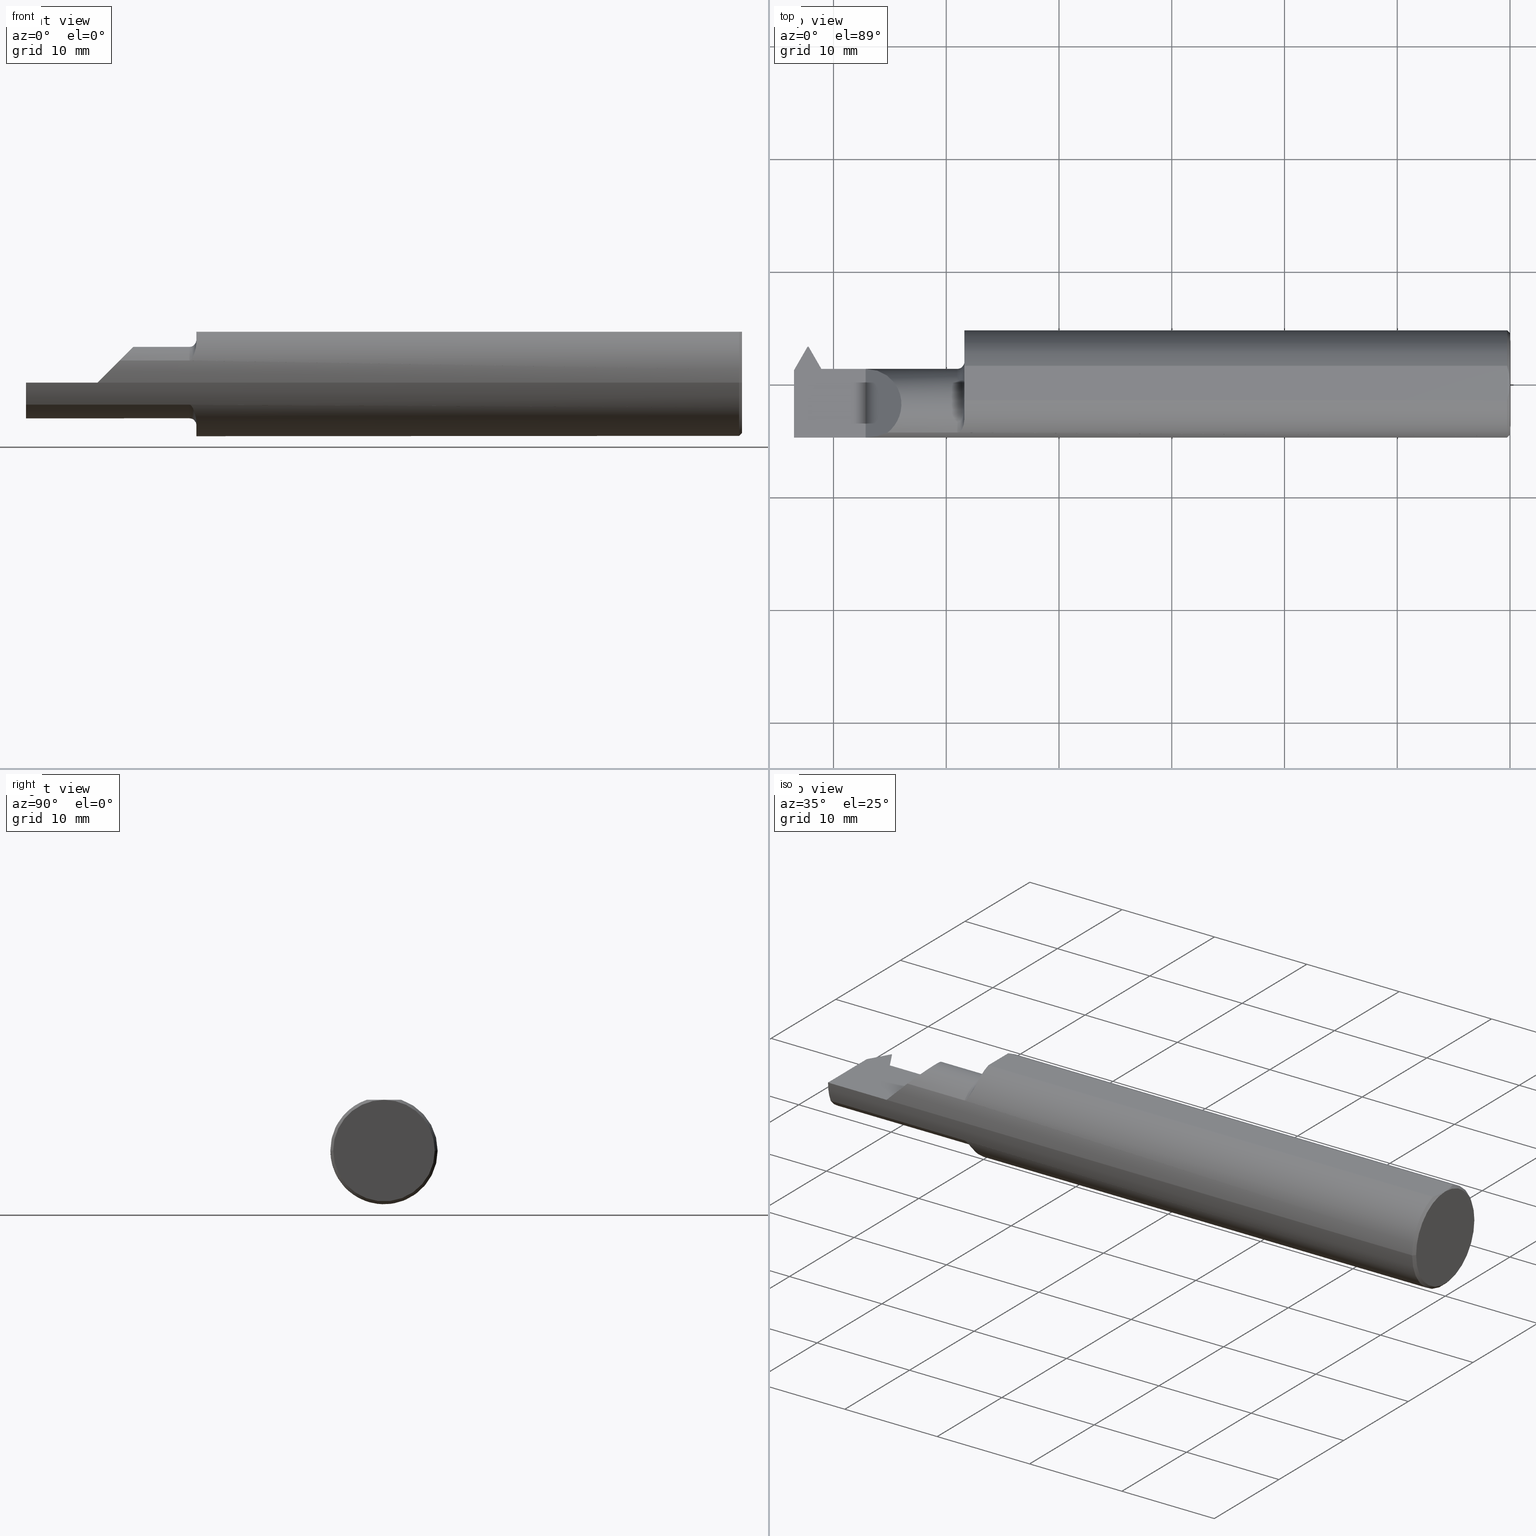
[diagram: canonical four-view strip — front | top / right | iso, engineering-drawing reading convention]
A machine part, canonical four-view strip (front | top / right | iso — engineering-drawing reading convention). The complete STEP part file that produces these views, byte-faithful:
ISO-10303-21;
HEADER;
FILE_DESCRIPTION (( 'STEP AP203' ),
    '1' );
FILE_NAME ('231891-LHTT320500.STEP',
    '2025-01-27T21:47:07',
    ( '' ),
    ( '' ),
    'SwSTEP 2.0',
    'SolidWorks 2024',
    '' );
FILE_SCHEMA (( 'CONFIG_CONTROL_DESIGN' ));
ENDSEC;

DATA;
#1 = EDGE_CURVE ( 'NONE', #529, #704, #619, .T. ) ;
#2 = AXIS2_PLACEMENT_3D ( 'NONE', #107, #841, #653 ) ;
#3 = AXIS2_PLACEMENT_3D ( 'NONE', #74, #549, #795 ) ;
#4 = DIRECTION ( 'NONE',  ( 0.000000000000000000, -0.7071067811865535679, -0.7071067811865415775 ) ) ;
#5 = ORIENTED_EDGE ( 'NONE', *, *, #169, .T. ) ;
#6 = EDGE_CURVE ( 'NONE', #21, #222, #683, .T. ) ;
#7 = FACE_OUTER_BOUND ( 'NONE', #329, .T. ) ;
#8 = LINE ( 'NONE', #831, #665 ) ;
#9 = EDGE_CURVE ( 'NONE', #567, #704, #158, .T. ) ;
#10 =( GEOMETRIC_REPRESENTATION_CONTEXT ( 3 ) GLOBAL_UNCERTAINTY_ASSIGNED_CONTEXT ( ( #378 ) ) GLOBAL_UNIT_ASSIGNED_CONTEXT ( ( #732, #714, #331 ) ) REPRESENTATION_CONTEXT ( 'NONE', 'WORKASPACE' ) );
#11 = PLANE ( 'NONE',  #76 ) ;
#12 = CARTESIAN_POINT ( 'NONE',  ( -2.399165208596790499, -0.07235000000000005316, 0.000000000000000000 ) ) ;
#13 = CC_DESIGN_APPROVAL ( #698, ( #384 ) ) ;
#14 = ORIENTED_EDGE ( 'NONE', *, *, #608, .F. ) ;
#15 = VECTOR ( 'NONE', #528, 39.37007874015748143 ) ;
#16 = APPROVAL ( #526, 'UNSPECIFIED' ) ;
#17 = LINE ( 'NONE', #350, #774 ) ;
#18 = ORIENTED_EDGE ( 'NONE', *, *, #223, .T. ) ;
#19 = FACE_OUTER_BOUND ( 'NONE', #509, .T. ) ;
#20 = LINE ( 'NONE', #437, #367 ) ;
#21 = VERTEX_POINT ( 'NONE', #617 ) ;
#22 = EDGE_CURVE ( 'NONE', #614, #869, #25, .T. ) ;
#23 = DIRECTION ( 'NONE',  ( 0.000000000000000000, -0.7071067811865429098, -0.7071067811865521247 ) ) ;
#24 =( BOUNDED_CURVE ( )  B_SPLINE_CURVE ( 3, ( #801, #199, #597, #467 ),
 .UNSPECIFIED., .F., .T. ) 
 B_SPLINE_CURVE_WITH_KNOTS ( ( 4, 4 ),
 ( 1.570796326794896780, 1.972222054753624221 ),
 .UNSPECIFIED. ) 
 CURVE ( )  GEOMETRIC_REPRESENTATION_ITEM ( )  RATIONAL_B_SPLINE_CURVE ( ( 1.000000000000000000, 0.9866164697472177281, 0.9866164697472177281, 1.000000000000000000 ) ) 
 REPRESENTATION_ITEM ( '' )  );
#25 = LINE ( 'NONE', #553, #746 ) ;
#26 = EDGE_LOOP ( 'NONE', ( #505, #687, #699, #780 ) ) ;
#27 =( LENGTH_UNIT ( ) NAMED_UNIT ( * ) SI_UNIT ( $, .METRE. ) );
#28 = CARTESIAN_POINT ( 'NONE',  ( -1.787599684888146134, -1.032071159273469041, -0.04000000000000028533 ) ) ;
#29 = CARTESIAN_POINT ( 'NONE',  ( 5.167234455789520332E-16, -0.01026980879711896812, 0.1773500000000000909 ) ) ;
#30 = AXIS2_PLACEMENT_3D ( 'NONE', #616, #697, #507 ) ;
#31 = ORIENTED_EDGE ( 'NONE', *, *, #129, .T. ) ;
#32 = CARTESIAN_POINT ( 'NONE',  ( -1.904999999999999805, -0.1232518659295084307, -0.1410992560040428556 ) ) ;
#33 = CYLINDRICAL_SURFACE ( 'NONE', #50, 0.1873499999999999610 ) ;
#34 = CARTESIAN_POINT ( 'NONE',  ( -2.500000000000000000, -0.07235000000000015030, -0.1250000000000000000 ) ) ;
#35 = EDGE_CURVE ( 'NONE', #607, #730, #192, .T. ) ;
#36 = B_SPLINE_CURVE_WITH_KNOTS ( 'NONE', 3,
 ( #53, #235, #452, #102, #29, #40 ),
 .UNSPECIFIED., .F., .F.,
 ( 4, 2, 4 ),
 ( 0.001950265285394878808, 0.002725445821525868118, 0.003500626357656857861 ),
 .UNSPECIFIED. ) ;
#37 = ORIENTED_EDGE ( 'NONE', *, *, #35, .T. ) ;
#38 = DIRECTION ( 'NONE',  ( -0.8486396879975990348, -0.4899623523104176259, 0.1993679344171976620 ) ) ;
#39 = DIRECTION ( 'NONE',  ( -1.224646799147352961E-16, 1.000000000000000000, 0.000000000000000000 ) ) ;
#40 = CARTESIAN_POINT ( 'NONE',  ( -4.969808731120574713E-33, 3.199103279729614038E-16, 0.1773500000000000909 ) ) ;
#41 = EDGE_CURVE ( 'NONE', #448, #67, #20, .T. ) ;
#42 = VERTEX_POINT ( 'NONE', #294 ) ;
#43 = APPROVAL_STATUS ( 'not_yet_approved' ) ;
#44 = LINE ( 'NONE', #783, #600 ) ;
#45 = APPLICATION_CONTEXT ( 'configuration controlled 3d designs of mechanical parts and assemblies' ) ;
#46 = PLANE ( 'NONE',  #386 ) ;
#47 = EDGE_CURVE ( 'NONE', #487, #453, #504, .T. ) ;
#48 = EDGE_LOOP ( 'NONE', ( #622, #796, #691, #677 ) ) ;
#49 = AXIS2_PLACEMENT_3D ( 'NONE', #12, #283, #427 ) ;
#50 = AXIS2_PLACEMENT_3D ( 'NONE', #480, #413, #297 ) ;
#51 = DATE_AND_TIME ( #530, #756 ) ;
#52 = LINE ( 'NONE', #664, #612 ) ;
#53 = CARTESIAN_POINT ( 'NONE',  ( -0.009999999999999073866, -0.06039039658753624085, 0.1773500000000000909 ) ) ;
#54 = ORIENTED_EDGE ( 'NONE', *, *, #823, .F. ) ;
#55 = CARTESIAN_POINT ( 'NONE',  ( -2.399165208596790499, -0.03467546208265555319, -0.1191873701057063473 ) ) ;
#56 = VERTEX_POINT ( 'NONE', #566 ) ;
#57 = PERSON_AND_ORGANIZATION ( #240, #804 ) ;
#58 = DIRECTION ( 'NONE',  ( 0.1143501000964209230, 0.1980601832175902521, 0.9734969021171833159 ) ) ;
#59 = PLANE ( 'NONE',  #87 ) ;
#60 = EDGE_LOOP ( 'NONE', ( #475, #14, #582, #372, #867, #142 ) ) ;
#61 = VECTOR ( 'NONE', #523, 39.37007874015748143 ) ;
#62 = VECTOR ( 'NONE', #724, 39.37007874015748854 ) ;
#63 = APPLICATION_PROTOCOL_DEFINITION ( 'international standard', 'config_control_design', 1994, #45 ) ;
#64 = CARTESIAN_POINT ( 'NONE',  ( -2.399466679003209091, 0.05264999999999996072, -0.1250000000000000000 ) ) ;
#65 = DIRECTION ( 'NONE',  ( 1.000000000000000000, -7.807390513315893590E-17, 0.000000000000000000 ) ) ;
#66 = CARTESIAN_POINT ( 'NONE',  ( -2.500000000000000000, -0.1873499999999999055, 0.000000000000000000 ) ) ;
#67 = VERTEX_POINT ( 'NONE', #748 ) ;
#68 = EDGE_CURVE ( 'NONE', #420, #519, #17, .T. ) ;
#69 = DIRECTION ( 'NONE',  ( 1.224646799147352961E-16, -1.000000000000000000, 0.000000000000000000 ) ) ;
#70 = FACE_OUTER_BOUND ( 'NONE', #364, .T. ) ;
#71 = ORIENTED_EDGE ( 'NONE', *, *, #9, .T. ) ;
#72 = EDGE_CURVE ( 'NONE', #735, #607, #557, .T. ) ;
#73 = LOCAL_TIME ( 13, 47, 7.000000000000000000, #776 ) ;
#74 = CARTESIAN_POINT ( 'NONE',  ( -1.904999999999999805, -0.07235000000000009479, 0.000000000000000000 ) ) ;
#75 = ORIENTED_EDGE ( 'NONE', *, *, #129, .F. ) ;
#76 = AXIS2_PLACEMENT_3D ( 'NONE', #214, #682, #239 ) ;
#77 = CARTESIAN_POINT ( 'NONE',  ( -2.399165208596790499, 0.7309542712158816347, 0.6464423631928178926 ) ) ;
#78 = AXIS2_PLACEMENT_3D ( 'NONE', #91, #170, #825 ) ;
#79 = FACE_OUTER_BOUND ( 'NONE', #593, .T. ) ;
#80 = ORIENTED_EDGE ( 'NONE', *, *, #409, .T. ) ;
#81 = EDGE_CURVE ( 'NONE', #529, #806, #8, .T. ) ;
#82 = CARTESIAN_POINT ( 'NONE',  ( -0.009999999999999073866, 0.06039039658753692086, 0.1773500000000000909 ) ) ;
#83 = CARTESIAN_POINT ( 'NONE',  ( -1.905000000000000027, 0.2123500000000001497, 0.1773500000000001187 ) ) ;
#84 = PLANE ( 'NONE',  #650 ) ;
#85 = ORIENTED_EDGE ( 'NONE', *, *, #22, .F. ) ;
#86 = DIRECTION ( 'NONE',  ( -1.253099476677462854E-16, 1.000000000000000000, 0.000000000000000000 ) ) ;
#87 = AXIS2_PLACEMENT_3D ( 'NONE', #478, #392, #328 ) ;
#88 = DIRECTION ( 'NONE',  ( -0.02328694095508679687, -0.3419273951315134341, -0.9394377972167885504 ) ) ;
#89 = ORIENTED_EDGE ( 'NONE', *, *, #661, .F. ) ;
#90 = EDGE_CURVE ( 'NONE', #347, #755, #352, .T. ) ;
#91 = CARTESIAN_POINT ( 'NONE',  ( -1.905000000000000027, 0.1873500000000003496, 0.000000000000000000 ) ) ;
#92 = CARTESIAN_POINT ( 'NONE',  ( -1.929999999999999938, -0.1707639599170692191, 0.07706940050007880794 ) ) ;
#93 = EDGE_CURVE ( 'NONE', #529, #347, #286, .T. ) ;
#94 = EDGE_LOOP ( 'NONE', ( #740, #821, #773, #481 ) ) ;
#95 = CARTESIAN_POINT ( 'NONE',  ( -2.399999999999999911, 0.1160911906293520535, -0.04000000000000000083 ) ) ;
#96 = LINE ( 'NONE', #28, #157 ) ;
#97 = CARTESIAN_POINT ( 'NONE',  ( 1.147187889101280084E-17, 3.673940397442058882E-16, 0.000000000000000000 ) ) ;
#98 = VERTEX_POINT ( 'NONE', #215 ) ;
#99 = CARTESIAN_POINT ( 'NONE',  ( -2.450491526677939458, 0.03109119062935316105, -0.1250000000000000000 ) ) ;
#100 = LINE ( 'NONE', #575, #103 ) ;
#101 = ADVANCED_FACE ( 'NONE', ( #221 ), #84, .T. ) ;
#102 = CARTESIAN_POINT ( 'NONE',  ( -0.0008974174807281316358, -0.02044204845470683207, 0.1773500000000000631 ) ) ;
#103 = VECTOR ( 'NONE', #143, 39.37007874015748143 ) ;
#104 = ORIENTED_EDGE ( 'NONE', *, *, #332, .F. ) ;
#105 = CYLINDRICAL_SURFACE ( 'NONE', #871, 0.1873499999999999610 ) ;
#106 = FACE_OUTER_BOUND ( 'NONE', #113, .T. ) ;
#107 = CARTESIAN_POINT ( 'NONE',  ( -2.399466679003209091, 0.05264999999999996766, 0.000000000000000000 ) ) ;
#108 = VERTEX_POINT ( 'NONE', #116 ) ;
#109 = PERSON_AND_ORGANIZATION_ROLE ( 'creator' ) ;
#110 = DIRECTION ( 'NONE',  ( 1.000000000000000000, 1.224646799147352961E-16, -0.000000000000000000 ) ) ;
#111 = EDGE_CURVE ( 'NONE', #56, #258, #300, .T. ) ;
#112 = FACE_OUTER_BOUND ( 'NONE', #802, .T. ) ;
#113 = EDGE_LOOP ( 'NONE', ( #673, #295, #758 ) ) ;
#114 = CC_DESIGN_SECURITY_CLASSIFICATION ( #384, ( #187 ) ) ;
#115 = DIRECTION ( 'NONE',  ( 1.000000000000000000, 1.224646799147352961E-16, -0.000000000000000000 ) ) ;
#116 = CARTESIAN_POINT ( 'NONE',  ( -2.500000000000000000, -0.1707639599170693301, -0.07706940050007840548 ) ) ;
#117 = VERTEX_POINT ( 'NONE', #34 ) ;
#118 = VECTOR ( 'NONE', #502, 39.37007874015748143 ) ;
#119 = AXIS2_PLACEMENT_3D ( 'NONE', #873, #411, #278 ) ;
#120 = CALENDAR_DATE ( 2025, 27, 1 ) ;
#121 = DIRECTION ( 'NONE',  ( 0.5000000000000027756, -0.8660254037844370423, 0.000000000000000000 ) ) ;
#122 = FACE_OUTER_BOUND ( 'NONE', #60, .T. ) ;
#123 = EDGE_LOOP ( 'NONE', ( #428, #514, #457, #168, #539, #377, #680, #658 ) ) ;
#124 = PERSON_AND_ORGANIZATION ( #240, #804 ) ;
#125 = CARTESIAN_POINT ( 'NONE',  ( -2.500000000000001332, 0.04271310668155354345, -0.04884139106116291984 ) ) ;
#126 = CARTESIAN_POINT ( 'NONE',  ( -2.399999999999999911, 0.03109119062935314370, -0.1250000000000000000 ) ) ;
#127 = ORIENTED_EDGE ( 'NONE', *, *, #655, .F. ) ;
#128 = DIRECTION ( 'NONE',  ( 1.000000000000000000, -7.807390513315893590E-17, 0.000000000000000000 ) ) ;
#129 = EDGE_CURVE ( 'NONE', #420, #704, #216, .T. ) ;
#130 = CARTESIAN_POINT ( 'NONE',  ( -1.905000000000000027, 0.1873500000000000998, 0.000000000000000000 ) ) ;
#131 = ORIENTED_EDGE ( 'NONE', *, *, #205, .F. ) ;
#132 = AXIS2_PLACEMENT_3D ( 'NONE', #703, #447, #789 ) ;
#133 = AXIS2_PLACEMENT_3D ( 'NONE', #599, #531, #722 ) ;
#134 = PRODUCT_DEFINITION_SHAPE ( 'NONE', 'NONE',  #176 ) ;
#135 = EDGE_CURVE ( 'NONE', #487, #434, #712, .T. ) ;
#136 = CARTESIAN_POINT ( 'NONE',  ( -0.0009167640511158797918, 0.02059964124962108956, 0.1773500000000000909 ) ) ;
#137 = ORIENTED_EDGE ( 'NONE', *, *, #820, .F. ) ;
#138 = B_SPLINE_CURVE_WITH_KNOTS ( 'NONE', 3,
 ( #660, #264, #800, #470, #150, #373, #368, #628, #689, #233, #506, #238, #425, #32 ),
 .UNSPECIFIED., .F., .F.,
 ( 4, 2, 2, 2, 2, 2, 4 ),
 ( 1.958244471940280644E-07, 0.0001405465607227724594, 0.0002808972969983508845, 0.0005615987695495095779, 0.001123001714651824905, 0.001684404659754138497, 0.002245807604856452089 ),
 .UNSPECIFIED. ) ;
#139 = MANIFOLD_SOLID_BREP ( 'Cut-Sweep1', #719 ) ;
#140 = ADVANCED_FACE ( 'NONE', ( #167 ), #837, .T. ) ;
#141 = DIRECTION ( 'NONE',  ( 0.000000000000000000, 0.7071067811865415775, -0.7071067811865535679 ) ) ;
#142 = ORIENTED_EDGE ( 'NONE', *, *, #655, .T. ) ;
#143 = DIRECTION ( 'NONE',  ( -1.000000000000000000, -1.553500558300393113E-17, -0.000000000000000000 ) ) ;
#144 = VERTEX_POINT ( 'NONE', #587 ) ;
#145 = AXIS2_PLACEMENT_3D ( 'NONE', #346, #747, #771 ) ;
#146 = CARTESIAN_POINT ( 'NONE',  ( -1.911440222444131587, -0.1564830431723812088, 0.1032649757824542214 ) ) ;
#147 = EDGE_LOOP ( 'NONE', ( #824, #253, #598 ) ) ;
#148 = CARTESIAN_POINT ( 'NONE',  ( -1.922416064253384294, -0.1687648201645036150, 0.08136796075313709742 ) ) ;
#149 = ORIENTED_EDGE ( 'NONE', *, *, #326, .T. ) ;
#150 = CARTESIAN_POINT ( 'NONE',  ( -1.922400974074067737, -0.1687571032453834829, -0.08138423029642506690 ) ) ;
#151 = EDGE_CURVE ( 'NONE', #144, #117, #387, .T. ) ;
#152 = DIRECTION ( 'NONE',  ( -0.4999999999999947820, 0.000000000000000000, 0.8660254037844417052 ) ) ;
#153 = ORIENTED_EDGE ( 'NONE', *, *, #624, .T. ) ;
#154 = PLANE ( 'NONE',  #512 ) ;
#155 = VECTOR ( 'NONE', #826, 39.37007874015748143 ) ;
#156 = ADVANCED_FACE ( 'NONE', ( #112 ), #46, .F. ) ;
#157 = VECTOR ( 'NONE', #570, 39.37007874015748854 ) ;
#158 = LINE ( 'NONE', #287, #429 ) ;
#159 = ORIENTED_EDGE ( 'NONE', *, *, #608, .T. ) ;
#160 = PLANE ( 'NONE',  #78 ) ;
#161 = PLANE ( 'NONE',  #145 ) ;
#162 = LINE ( 'NONE', #643, #515 ) ;
#163 = ORIENTED_EDGE ( 'NONE', *, *, #135, .T. ) ;
#164 = EDGE_CURVE ( 'NONE', #185, #42, #716, .T. ) ;
#165 = DIRECTION ( 'NONE',  ( 1.000000000000000000, 1.224646799147352961E-16, -0.000000000000000000 ) ) ;
#166 = CARTESIAN_POINT ( 'NONE',  ( -2.409165208596789842, 0.04451190802305236144, -0.03999999999999834938 ) ) ;
#167 = FACE_OUTER_BOUND ( 'NONE', #213, .T. ) ;
#168 = ORIENTED_EDGE ( 'NONE', *, *, #276, .T. ) ;
#169 = EDGE_CURVE ( 'NONE', #383, #42, #162, .T. ) ;
#170 = DIRECTION ( 'NONE',  ( -1.000000000000000000, 7.807390513315893590E-17, 0.000000000000000000 ) ) ;
#171 = CARTESIAN_POINT ( 'NONE',  ( -2.368077295567089458, -0.1116544449213613954, -0.1249999999999999861 ) ) ;
#172 = VECTOR ( 'NONE', #183, 39.37007874015748143 ) ;
#173 = CARTESIAN_POINT ( 'NONE',  ( -2.451508473322062454, 0.1160911906293514845, -0.04000000000000077105 ) ) ;
#174 = CIRCLE ( 'NONE', #667, 0.1873499999999999610 ) ;
#175 = ORIENTED_EDGE ( 'NONE', *, *, #93, .T. ) ;
#176 = PRODUCT_DEFINITION ( 'UNKNOWN', '', #187, #604 ) ;
#177 = APPROVAL_DATE_TIME ( #589, #16 ) ;
#178 = DIRECTION ( 'NONE',  ( 1.000000000000000000, 9.645778246075804961E-15, 9.645778246075640878E-15 ) ) ;
#179 = DIRECTION ( 'NONE',  ( 1.000000000000000000, 1.224646799147352961E-16, -0.000000000000000000 ) ) ;
#180 = EDGE_LOOP ( 'NONE', ( #786, #389, #208, #159, #558, #588 ) ) ;
#181 = DATE_TIME_ROLE ( 'classification_date' ) ;
#182 = CARTESIAN_POINT ( 'NONE',  ( -2.171911098287777663E-17, 0.1773500000000008403, 2.171911098287836519E-17 ) ) ;
#183 = DIRECTION ( 'NONE',  ( 1.000000000000000000, 7.683322482180613419E-15, 0.000000000000000000 ) ) ;
#184 = EDGE_CURVE ( 'NONE', #806, #267, #36, .T. ) ;
#185 = VERTEX_POINT ( 'NONE', #316 ) ;
#186 = DIMENSIONAL_EXPONENTS ( 1.000000000000000000, 0.000000000000000000, 0.000000000000000000, 0.000000000000000000, 0.000000000000000000, 0.000000000000000000, 0.000000000000000000 ) ;
#187 = PRODUCT_DEFINITION_FORMATION_WITH_SPECIFIED_SOURCE ( 'ANY', '', #406, .NOT_KNOWN. ) ;
#188 = COORDINATED_UNIVERSAL_TIME_OFFSET ( 8, 0, .BEHIND. ) ;
#189 = DIRECTION ( 'NONE',  ( -7.807390513315893590E-17, -1.000000000000000000, 0.000000000000000000 ) ) ;
#190 = DIRECTION ( 'NONE',  ( 0.4999999999999895084, 0.8660254037844445918, 0.000000000000000000 ) ) ;
#191 = ADVANCED_FACE ( 'NONE', ( #366 ), #592, .T. ) ;
#192 = CIRCLE ( 'NONE', #49, 0.1250000000000001110 ) ;
#193 = LINE ( 'NONE', #126, #635 ) ;
#194 = ORIENTED_EDGE ( 'NONE', *, *, #353, .F. ) ;
#195 = VECTOR ( 'NONE', #325, 39.37007874015748143 ) ;
#196 = CIRCLE ( 'NONE', #299, 0.1250000000000000278 ) ;
#197 = CALENDAR_DATE ( 2025, 27, 1 ) ;
#198 = CARTESIAN_POINT ( 'NONE',  ( -2.300000000000000266, -0.07235000000000016418, -0.1249999999999999861 ) ) ;
#199 = CARTESIAN_POINT ( 'NONE',  ( -2.396040671537939648, 0.05265000000000007868, -0.01683936468141915971 ) ) ;
#200 = VERTEX_POINT ( 'NONE', #462 ) ;
#201 = EDGE_CURVE ( 'NONE', #21, #67, #456, .T. ) ;
#202 = PLANE ( 'NONE',  #623 ) ;
#203 = CARTESIAN_POINT ( 'NONE',  ( -2.389529785684763041, 0.04271310668155392509, -0.04884139106116304474 ) ) ;
#204 = ORIENTED_EDGE ( 'NONE', *, *, #268, .F. ) ;
#205 = EDGE_CURVE ( 'NONE', #755, #752, #611, .T. ) ;
#206 = CONICAL_SURFACE ( 'NONE', #678, 0.1773500000000004795, 0.7853981633974688181 ) ;
#207 = CARTESIAN_POINT ( 'NONE',  ( -2.172930599499919957, -0.1707639599170690525, 0.07706940050007902998 ) ) ;
#208 = ORIENTED_EDGE ( 'NONE', *, *, #41, .F. ) ;
#209 = AXIS2_PLACEMENT_3D ( 'NONE', #349, #440, #39 ) ;
#210 = CARTESIAN_POINT ( 'NONE',  ( -2.164733339501604625, -0.1707639599170691636, 0.07706940050007879406 ) ) ;
#211 = ORIENTED_EDGE ( 'NONE', *, *, #205, .T. ) ;
#212 = LINE ( 'NONE', #340, #775 ) ;
#213 = EDGE_LOOP ( 'NONE', ( #842, #684, #700 ) ) ;
#214 = CARTESIAN_POINT ( 'NONE',  ( -2.500000000000000000, 0.2123500000000002053, 0.1773500000000001187 ) ) ;
#215 = CARTESIAN_POINT ( 'NONE',  ( -1.904999999999999805, -0.1232518659295084307, -0.1410992560040428556 ) ) ;
#216 = CIRCLE ( 'NONE', #705, 0.1873499999999999610 ) ;
#217 = VECTOR ( 'NONE', #58, 39.37007874015748854 ) ;
#218 = CARTESIAN_POINT ( 'NONE',  ( -1.904999999999999805, -0.1232518659284810858, 0.1410992560044134758 ) ) ;
#219 = ORIENTED_EDGE ( 'NONE', *, *, #690, .T. ) ;
#220 = EDGE_CURVE ( 'NONE', #200, #654, #227, .T. ) ;
#221 = FACE_OUTER_BOUND ( 'NONE', #810, .T. ) ;
#222 = VERTEX_POINT ( 'NONE', #768 ) ;
#223 = EDGE_CURVE ( 'NONE', #713, #301, #633, .T. ) ;
#224 = FACE_OUTER_BOUND ( 'NONE', #438, .T. ) ;
#225 = DIRECTION ( 'NONE',  ( 1.000000000000000000, 1.224646799147352961E-16, -0.000000000000000000 ) ) ;
#226 = VERTEX_POINT ( 'NONE', #173 ) ;
#227 = CIRCLE ( 'NONE', #652, 0.1773500000000004795 ) ;
#228 = FACE_OUTER_BOUND ( 'NONE', #833, .T. ) ;
#229 = DIRECTION ( 'NONE',  ( 1.224646799147319927E-16, -1.000000000000000000, 0.000000000000000000 ) ) ;
#230 = TOROIDAL_SURFACE ( 'NONE', #720, 0.1500000000000002165, 0.02500000000000006731 ) ;
#231 = CARTESIAN_POINT ( 'NONE',  ( -1.917693213531850960, -0.1652178096906200544, 0.08840046645041858830 ) ) ;
#232 = ORIENTED_EDGE ( 'NONE', *, *, #627, .F. ) ;
#233 = CARTESIAN_POINT ( 'NONE',  ( -1.908205059584734853, -0.1482131682563414821, -0.1148178553395529794 ) ) ;
#234 = CARTESIAN_POINT ( 'NONE',  ( -2.420783230410803011, 0.02438890395773846489, -0.1389077249179000439 ) ) ;
#235 = CARTESIAN_POINT ( 'NONE',  ( -0.006863038267947818571, -0.05065855487579187105, 0.1773500000000001187 ) ) ;
#236 = EDGE_CURVE ( 'NONE', #487, #408, #397, .T. ) ;
#237 = ORIENTED_EDGE ( 'NONE', *, *, #1, .T. ) ;
#238 = CARTESIAN_POINT ( 'NONE',  ( -1.905422262237692621, -0.1340112273051913550, -0.1311235663431501164 ) ) ;
#239 = DIRECTION ( 'NONE',  ( 0.000000000000000000, 1.000000000000000000, 1.608104540654733016E-16 ) ) ;
#240 = PERSON ( 'UNSPECIFIED', 'UNSPECIFIED', 'UNSPECIFIED', ('UNSPECIFIED'), ('UNSPECIFIED'), ('UNSPECIFIED') ) ;
#241 = DIRECTION ( 'NONE',  ( 0.4999999999999896194, 0.8660254037844447028, 0.000000000000000000 ) ) ;
#242 = CONICAL_SURFACE ( 'NONE', #482, 0.1773500000000004795, 0.7853981633974688181 ) ;
#243 = ORIENTED_EDGE ( 'NONE', *, *, #823, .T. ) ;
#244 = APPROVAL_ROLE ( '' ) ;
#245 = LINE ( 'NONE', #715, #706 ) ;
#246 = CARTESIAN_POINT ( 'NONE',  ( -2.172930599499919957, -0.1707639599170690525, 0.07706940050007902998 ) ) ;
#247 = AXIS2_PLACEMENT_3D ( 'NONE', #662, #803, #671 ) ;
#248 = ORIENTED_EDGE ( 'NONE', *, *, #90, .F. ) ;
#249 = SECURITY_CLASSIFICATION_LEVEL ( 'unclassified' ) ;
#250 = LINE ( 'NONE', #64, #548 ) ;
#251 = ADVANCED_FACE ( 'NONE', ( #581 ), #252, .T. ) ;
#252 = PLANE ( 'NONE',  #312 ) ;
#253 = ORIENTED_EDGE ( 'NONE', *, *, #778, .T. ) ;
#254 = COORDINATED_UNIVERSAL_TIME_OFFSET ( 8, 0, .BEHIND. ) ;
#255 = CARTESIAN_POINT ( 'NONE',  ( -2.500000000000000000, -0.1873499999999998777, 0.000000000000000000 ) ) ;
#256 = EDGE_CURVE ( 'NONE', #258, #614, #533, .T. ) ;
#257 = CARTESIAN_POINT ( 'NONE',  ( -2.451000000000000512, 0.8034142554502868849, 0.6464423631928178926 ) ) ;
#258 = VERTEX_POINT ( 'NONE', #794 ) ;
#259 = CALENDAR_DATE ( 2025, 27, 1 ) ;
#260 = CARTESIAN_POINT ( 'NONE',  ( -2.106959123870335127, 0.05265000000000001623, 0.1430408761296632636 ) ) ;
#261 = ORIENTED_EDGE ( 'NONE', *, *, #717, .F. ) ;
#262 = ADVANCED_FACE ( 'NONE', ( #122 ), #396, .F. ) ;
#263 = PERSON_AND_ORGANIZATION_ROLE ( 'classification_officer' ) ;
#264 = CARTESIAN_POINT ( 'NONE',  ( -1.928119110118878154, -0.1707639599170689415, -0.07706940050007909937 ) ) ;
#265 = CARTESIAN_POINT ( 'NONE',  ( -1.888900315111871286, 1.090557105402177207, -0.04000000000000550338 ) ) ;
#266 = DIRECTION ( 'NONE',  ( -1.253099476677462854E-16, 1.000000000000000000, -1.776356839400250465E-15 ) ) ;
#267 = VERTEX_POINT ( 'NONE', #596 ) ;
#268 = EDGE_CURVE ( 'NONE', #404, #226, #327, .T. ) ;
#269 = ORIENTED_EDGE ( 'NONE', *, *, #268, .T. ) ;
#270 = CC_DESIGN_PERSON_AND_ORGANIZATION_ASSIGNMENT ( #449, #109, ( #176 ) ) ;
#271 = AXIS2_PLACEMENT_3D ( 'NONE', #318, #469, #651 ) ;
#272 = CARTESIAN_POINT ( 'NONE',  ( -2.500000000000000000, 0.1306500000000000716, 0.000000000000000000 ) ) ;
#273 = CARTESIAN_POINT ( 'NONE',  ( -0.004345633232307596558, 0.04072602595449471841, 0.1773500000000000909 ) ) ;
#274 = ORIENTED_EDGE ( 'NONE', *, *, #220, .F. ) ;
#275 = VECTOR ( 'NONE', #709, 39.37007874015748143 ) ;
#276 = EDGE_CURVE ( 'NONE', #108, #752, #212, .T. ) ;
#277 = PLANE ( 'NONE',  #461 ) ;
#278 = DIRECTION ( 'NONE',  ( -1.224646799147352961E-16, 1.000000000000000000, 0.000000000000000000 ) ) ;
#279 = ORIENTED_EDGE ( 'NONE', *, *, #409, .F. ) ;
#280 = CYLINDRICAL_SURFACE ( 'NONE', #807, 0.1873499999999999610 ) ;
#281 = DIRECTION ( 'NONE',  ( 1.000000000000000000, -7.807390513315893590E-17, 0.000000000000000000 ) ) ;
#282 = DIRECTION ( 'NONE',  ( 0.000000000000000000, 1.000000000000000000, 0.000000000000000000 ) ) ;
#283 = DIRECTION ( 'NONE',  ( 1.000000000000000000, -0.000000000000000000, 0.000000000000000000 ) ) ;
#284 = ORIENTED_EDGE ( 'NONE', *, *, #670, .T. ) ;
#285 = EDGE_CURVE ( 'NONE', #755, #408, #808, .T. ) ;
#286 = CIRCLE ( 'NONE', #402, 0.1873499999999999610 ) ;
#287 = CARTESIAN_POINT ( 'NONE',  ( -2.500000000000000000, 0.06039039658753661555, 0.1773500000000000909 ) ) ;
#288 = EDGE_LOOP ( 'NONE', ( #547, #861, #610, #54, #89, #137 ) ) ;
#289 = CARTESIAN_POINT ( 'NONE',  ( 0.000000000000000000, 3.673940397442058882E-16, 0.000000000000000000 ) ) ;
#290 = DIRECTION ( 'NONE',  ( 5.520658775337235997E-17, 0.7071067811865535679, 0.7071067811865415775 ) ) ;
#291 = ADVANCED_FACE ( 'NONE', ( #321 ), #277, .T. ) ;
#292 = ORIENTED_EDGE ( 'NONE', *, *, #717, .T. ) ;
#293 = FACE_OUTER_BOUND ( 'NONE', #123, .T. ) ;
#294 = CARTESIAN_POINT ( 'NONE',  ( -2.399466679003209091, 0.05264999999999994684, 0.000000000000000000 ) ) ;
#295 = ORIENTED_EDGE ( 'NONE', *, *, #220, .T. ) ;
#296 = CARTESIAN_POINT ( 'NONE',  ( 0.000000000000000000, 3.673940397442058882E-16, 0.000000000000000000 ) ) ;
#297 = DIRECTION ( 'NONE',  ( 0.000000000000000000, 1.000000000000000000, 0.000000000000000000 ) ) ;
#298 = AXIS2_PLACEMENT_3D ( 'NONE', #380, #115, #315 ) ;
#299 = AXIS2_PLACEMENT_3D ( 'NONE', #510, #435, #302 ) ;
#300 = LINE ( 'NONE', #375, #485 ) ;
#301 = VERTEX_POINT ( 'NONE', #537 ) ;
#302 = DIRECTION ( 'NONE',  ( 0.000000000000000000, -1.000000000000000000, 0.000000000000000000 ) ) ;
#303 = LINE ( 'NONE', #234, #217 ) ;
#304 = CARTESIAN_POINT ( 'NONE',  ( -4.045269286869511293E-16, 0.05265000000001845981, 0.000000000000000000 ) ) ;
#305 = ORIENTED_EDGE ( 'NONE', *, *, #164, .F. ) ;
#306 = CARTESIAN_POINT ( 'NONE',  ( -2.500000000000000000, -0.07235000000000005316, 0.000000000000000000 ) ) ;
#307 = DIRECTION ( 'NONE',  ( 0.000000000000000000, -1.000000000000000000, 0.000000000000000000 ) ) ;
#308 = ORIENTED_EDGE ( 'NONE', *, *, #731, .F. ) ;
#309 = CALENDAR_DATE ( 2025, 27, 1 ) ;
#310 = CARTESIAN_POINT ( 'NONE',  ( -2.449500000000000899, 0.1306500000000000439, 0.000000000000000000 ) ) ;
#311 = CARTESIAN_POINT ( 'NONE',  ( -2.223323963392672908, -0.1873499999999998222, 0.02667603660732679668 ) ) ;
#312 = AXIS2_PLACEMENT_3D ( 'NONE', #471, #540, #69 ) ;
#313 = ORIENTED_EDGE ( 'NONE', *, *, #382, .T. ) ;
#314 = ADVANCED_FACE ( 'NONE', ( #675 ), #812, .T. ) ;
#315 = DIRECTION ( 'NONE',  ( 0.000000000000000000, 1.000000000000000000, 0.000000000000000000 ) ) ;
#316 = CARTESIAN_POINT ( 'NONE',  ( -2.404466679003209428, 0.05264999999999991215, 0.000000000000000000 ) ) ;
#317 = ORIENTED_EDGE ( 'NONE', *, *, #236, .T. ) ;
#318 = CARTESIAN_POINT ( 'NONE',  ( 0.000000000000000000, 0.000000000000000000, 0.000000000000000000 ) ) ;
#319 = DIRECTION ( 'NONE',  ( -1.000000000000000000, 7.807390513315893590E-17, -0.000000000000000000 ) ) ;
#320 = ADVANCED_FACE ( 'NONE', ( #860 ), #59, .F. ) ;
#321 = FACE_OUTER_BOUND ( 'NONE', #180, .T. ) ;
#322 = CARTESIAN_POINT ( 'NONE',  ( -2.500000000000000000, 0.03210140268658002310, -0.04000000000000034778 ) ) ;
#323 = ORIENTED_EDGE ( 'NONE', *, *, #47, .F. ) ;
#324 = DATE_AND_TIME ( #197, #688 ) ;
#325 = DIRECTION ( 'NONE',  ( -1.000000000000000000, 7.807390513315893590E-17, -0.000000000000000000 ) ) ;
#326 = EDGE_CURVE ( 'NONE', #404, #56, #601, .T. ) ;
#327 = LINE ( 'NONE', #265, #586 ) ;
#328 = DIRECTION ( 'NONE',  ( 0.000000000000000000, -0.3420201433256632173, -0.9396926207859103153 ) ) ;
#329 = EDGE_LOOP ( 'NONE', ( #718, #163, #499, #669, #175, #555, #602 ) ) ;
#330 = AXIS2_PLACEMENT_3D ( 'NONE', #77, #439, #534 ) ;
#331 =( NAMED_UNIT ( * ) SI_UNIT ( $, .STERADIAN. ) SOLID_ANGLE_UNIT ( ) );
#332 = EDGE_CURVE ( 'NONE', #404, #301, #866, .T. ) ;
#333 = APPLICATION_CONTEXT ( 'configuration controlled 3d designs of mechanical parts and assemblies' ) ;
#334 = LINE ( 'NONE', #729, #357 ) ;
#335 = ORIENTED_EDGE ( 'NONE', *, *, #649, .F. ) ;
#336 = DIRECTION ( 'NONE',  ( 0.4999999999999902300, 0.8660254037844441477, -4.465175440355234859E-15 ) ) ;
#337 = DIRECTION ( 'NONE',  ( -1.224646799147352961E-16, 1.000000000000000000, 0.000000000000000000 ) ) ;
#338 = ORIENTED_EDGE ( 'NONE', *, *, #685, .F. ) ;
#339 = EDGE_CURVE ( 'NONE', #567, #519, #738, .T. ) ;
#340 = CARTESIAN_POINT ( 'NONE',  ( -2.164733339501604625, -0.1707639599170691636, -0.07706940050007879406 ) ) ;
#341 = CARTESIAN_POINT ( 'NONE',  ( 1.147187889101280084E-17, 3.673940397442058882E-16, 0.000000000000000000 ) ) ;
#342 = ORIENTED_EDGE ( 'NONE', *, *, #726, .F. ) ;
#343 = CIRCLE ( 'NONE', #119, 0.1773500000000004795 ) ;
#344 = EDGE_CURVE ( 'NONE', #654, #267, #343, .T. ) ;
#345 = AXIS2_PLACEMENT_3D ( 'NONE', #492, #38, #696 ) ;
#346 = CARTESIAN_POINT ( 'NONE',  ( -2.399466679003209091, 1.873357338666724363E-16, 0.000000000000000000 ) ) ;
#347 = VERTEX_POINT ( 'NONE', #672 ) ;
#348 = EDGE_CURVE ( 'NONE', #267, #200, #615, .T. ) ;
#349 = CARTESIAN_POINT ( 'NONE',  ( 1.147187889101284552E-17, 1.404899976408496659E-33, 0.000000000000000000 ) ) ;
#350 = CARTESIAN_POINT ( 'NONE',  ( -2.500000000000000000, 0.1873500000000000165, 0.000000000000000000 ) ) ;
#351 = VERTEX_POINT ( 'NONE', #66 ) ;
#352 = B_SPLINE_CURVE_WITH_KNOTS ( 'NONE', 3,
 ( #218, #419, #554, #819, #354, #146, #751, #231, #694, #148, #422, #360, #498, #92 ),
 .UNSPECIFIED., .F., .F.,
 ( 4, 2, 2, 2, 2, 2, 4 ),
 ( 0.0003577765748898353057, 0.0009104683997785904381, 0.001463160224667345516, 0.002015852049556100378, 0.002292197962000478133, 0.002430370918222667445, 0.002568543874444856323 ),
 .UNSPECIFIED. ) ;
#353 = EDGE_CURVE ( 'NONE', #347, #98, #556, .T. ) ;
#354 = CARTESIAN_POINT ( 'NONE',  ( -1.908201226339375722, -0.1482043182641873125, 0.1148306495308967501 ) ) ;
#355 = ORIENTED_EDGE ( 'NONE', *, *, #93, .F. ) ;
#356 = VECTOR ( 'NONE', #290, 39.37007874015748143 ) ;
#357 = VECTOR ( 'NONE', #398, 39.37007874015748854 ) ;
#358 = DIRECTION ( 'NONE',  ( 1.224646799147352961E-16, -1.000000000000000000, 0.000000000000000000 ) ) ;
#359 = EDGE_CURVE ( 'NONE', #769, #713, #193, .T. ) ;
#360 = CARTESIAN_POINT ( 'NONE',  ( -1.926415813383503428, -0.1703907533020775078, 0.07790009962036281710 ) ) ;
#361 = ORIENTED_EDGE ( 'NONE', *, *, #649, .T. ) ;
#362 = DIRECTION ( 'NONE',  ( 1.098490779351302641E-17, -0.7071067811865521247, 0.7071067811865429098 ) ) ;
#363 = CARTESIAN_POINT ( 'NONE',  ( -2.399165208596790499, 0.7309542712158816347, 0.6464423631928178926 ) ) ;
#364 = EDGE_LOOP ( 'NONE', ( #335, #323, #317 ) ) ;
#365 = DIRECTION ( 'NONE',  ( -1.000000000000000000, -1.224646799147319927E-16, 0.000000000000000000 ) ) ;
#366 = FACE_OUTER_BOUND ( 'NONE', #94, .T. ) ;
#367 = VECTOR ( 'NONE', #754, 39.37007874015748143 ) ;
#368 = CARTESIAN_POINT ( 'NONE',  ( -1.917677439423819186, -0.1652001307534595731, -0.08843250989739148693 ) ) ;
#369 = FACE_OUTER_BOUND ( 'NONE', #491, .T. ) ;
#370 = VECTOR ( 'NONE', #65, 39.37007874015748143 ) ;
#371 = CARTESIAN_POINT ( 'NONE',  ( -2.300000000000000266, -0.04048809197694935857, -0.1249999999999999861 ) ) ;
#372 = ORIENTED_EDGE ( 'NONE', *, *, #164, .T. ) ;
#373 = CARTESIAN_POINT ( 'NONE',  ( -1.919262760687378888, -0.1667342482336280352, -0.08549289042268606864 ) ) ;
#374 = CARTESIAN_POINT ( 'NONE',  ( -2.399466679003209091, -0.07235000000000005316, 0.000000000000000000 ) ) ;
#375 = CARTESIAN_POINT ( 'NONE',  ( -1.895948109502243684, 1.094626151390651891, 0.000000000000000000 ) ) ;
#376 = EDGE_CURVE ( 'NONE', #117, #301, #613, .T. ) ;
#377 = ORIENTED_EDGE ( 'NONE', *, *, #731, .T. ) ;
#378 = UNCERTAINTY_MEASURE_WITH_UNIT (LENGTH_MEASURE( 1.000000000000000082E-05 ), #732, 'distance_accuracy_value', 'NONE');
#379 = DATE_TIME_ROLE ( 'creation_date' ) ;
#380 = CARTESIAN_POINT ( 'NONE',  ( -2.500000000000000000, 6.123233995736767268E-17, 0.000000000000000000 ) ) ;
#381 = DIRECTION ( 'NONE',  ( 0.7745966692414782973, 0.4472135954999585938, -0.4472135954999662544 ) ) ;
#382 = EDGE_CURVE ( 'NONE', #42, #383, #24, .T. ) ;
#383 = VERTEX_POINT ( 'NONE', #203 ) ;
#384 = SECURITY_CLASSIFICATION ( '', '', #249 ) ;
#385 = DIRECTION ( 'NONE',  ( -1.000000000000000000, -1.224646799147319927E-16, 0.000000000000000000 ) ) ;
#386 = AXIS2_PLACEMENT_3D ( 'NONE', #571, #785, #241 ) ;
#387 = LINE ( 'NONE', #508, #61 ) ;
#388 = AXIS2_PLACEMENT_3D ( 'NONE', #657, #609, #266 ) ;
#389 = ORIENTED_EDGE ( 'NONE', *, *, #201, .T. ) ;
#390 = DATE_AND_TIME ( #120, #565 ) ;
#391 = CARTESIAN_POINT ( 'NONE',  ( -2.500000000000000000, -0.03467546208265560870, -0.1191873701057062501 ) ) ;
#392 = DIRECTION ( 'NONE',  ( 1.459813011021671533E-17, -0.9396926207859104263, 0.3420201433256632728 ) ) ;
#393 = ORIENTED_EDGE ( 'NONE', *, *, #201, .F. ) ;
#394 = COORDINATED_UNIVERSAL_TIME_OFFSET ( 8, 0, .BEHIND. ) ;
#395 = CARTESIAN_POINT ( 'NONE',  ( -1.929999999999999938, -0.1707639599170691913, -0.07706940050007884957 ) ) ;
#396 = PLANE ( 'NONE',  #247 ) ;
#397 =( BOUNDED_CURVE ( )  B_SPLINE_CURVE ( 3, ( #647, #311, #846, #246 ),
 .UNSPECIFIED., .F., .T. ) 
 B_SPLINE_CURVE_WITH_KNOTS ( ( 4, 4 ),
 ( 4.712388980384689674, 5.136341099405675514 ),
 .UNSPECIFIED. ) 
 CURVE ( )  GEOMETRIC_REPRESENTATION_ITEM ( )  RATIONAL_B_SPLINE_CURVE ( ( 1.000000000000000000, 0.9850780508747846165, 0.9850780508747846165, 1.000000000000000000 ) ) 
 REPRESENTATION_ITEM ( '' )  );
#398 = DIRECTION ( 'NONE',  ( -0.02328694095509177206, 0.3419273951315133786, 0.9394377972167885504 ) ) ;
#399 = ORIENTED_EDGE ( 'NONE', *, *, #685, .T. ) ;
#400 = MECHANICAL_CONTEXT ( 'NONE', #45, 'mechanical' ) ;
#401 = CARTESIAN_POINT ( 'NONE',  ( -2.172930599499919957, -0.1707639599170690525, 0.07706940050007902998 ) ) ;
#402 = AXIS2_PLACEMENT_3D ( 'NONE', #764, #281, #686 ) ;
#403 = DIRECTION ( 'NONE',  ( -1.000000000000000000, -1.553500558300393113E-17, -0.000000000000000000 ) ) ;
#404 = VERTEX_POINT ( 'NONE', #322 ) ;
#405 = VECTOR ( 'NONE', #4, 39.37007874015748143 ) ;
#406 = PRODUCT ( '231891-LHTT320500', '231891-LHTT320500', '', ( #400 ) ) ;
#407 = CARTESIAN_POINT ( 'NONE',  ( -2.450491526677938126, 0.1160911906293524976, -0.03999999999999956368 ) ) ;
#408 = VERTEX_POINT ( 'NONE', #207 ) ;
#409 = EDGE_CURVE ( 'NONE', #226, #258, #334, .T. ) ;
#410 = DIRECTION ( 'NONE',  ( 0.000000000000000000, 0.7071067811865535679, 0.7071067811865415775 ) ) ;
#411 = DIRECTION ( 'NONE',  ( 1.000000000000000000, 1.224646799147352961E-16, -0.000000000000000000 ) ) ;
#412 = ORIENTED_EDGE ( 'NONE', *, *, #151, .T. ) ;
#413 = DIRECTION ( 'NONE',  ( 1.000000000000000000, 1.224646799147352961E-16, -0.000000000000000000 ) ) ;
#414 = ORIENTED_EDGE ( 'NONE', *, *, #627, .T. ) ;
#415 = CONICAL_SURFACE ( 'NONE', #500, 0.1773500000000004795, 0.7853981633974688181 ) ;
#416 = AXIS2_PLACEMENT_3D ( 'NONE', #693, #835, #86 ) ;
#417 = EDGE_CURVE ( 'NONE', #769, #869, #472, .T. ) ;
#418 = FACE_OUTER_BOUND ( 'NONE', #26, .T. ) ;
#419 = CARTESIAN_POINT ( 'NONE',  ( -1.904999999999960947, -0.1287237903461468103, 0.1363194654249251236 ) ) ;
#420 = VERTEX_POINT ( 'NONE', #130 ) ;
#421 = ADVANCED_FACE ( 'NONE', ( #70 ), #474, .F. ) ;
#422 = CARTESIAN_POINT ( 'NONE',  ( -1.923586104532882368, -0.1693889752090148026, 0.08005503987477412264 ) ) ;
#423 = ORIENTED_EDGE ( 'NONE', *, *, #151, .F. ) ;
#424 = EDGE_CURVE ( 'NONE', #267, #567, #781, .T. ) ;
#425 = CARTESIAN_POINT ( 'NONE',  ( -1.904999999999999805, -0.1287560726697994373, -0.1362912664340397428 ) ) ;
#426 = CC_DESIGN_APPROVAL ( #16, ( #176 ) ) ;
#427 = DIRECTION ( 'NONE',  ( 0.000000000000000000, 8.878505979408848064E-16, 1.000000000000000000 ) ) ;
#428 = ORIENTED_EDGE ( 'NONE', *, *, #135, .F. ) ;
#429 = VECTOR ( 'NONE', #484, 39.37007874015748143 ) ;
#430 = AXIS2_PLACEMENT_3D ( 'NONE', #739, #809, #606 ) ;
#431 = CC_DESIGN_DATE_AND_TIME_ASSIGNMENT ( #51, #379, ( #176 ) ) ;
#432 = LINE ( 'NONE', #625, #723 ) ;
#433 = DIRECTION ( 'NONE',  ( 1.000000000000000000, 1.224646799147352961E-16, -0.000000000000000000 ) ) ;
#434 = VERTEX_POINT ( 'NONE', #444 ) ;
#435 = DIRECTION ( 'NONE',  ( 1.000000000000000000, 1.553500558300393113E-17, -0.000000000000000000 ) ) ;
#436 = CARTESIAN_POINT ( 'NONE',  ( -1.905000000000000027, -0.06039039658753646983, 0.1773500000000000909 ) ) ;
#437 = CARTESIAN_POINT ( 'NONE',  ( -2.409165208596790286, 0.7309542712158816347, 0.6464423631928178926 ) ) ;
#438 = EDGE_LOOP ( 'NONE', ( #194, #355, #237, #75, #308 ) ) ;
#439 = DIRECTION ( 'NONE',  ( -1.000000000000000000, 0.000000000000000000, -0.000000000000000000 ) ) ;
#440 = DIRECTION ( 'NONE',  ( 1.000000000000000000, 1.224646799147352961E-16, -0.000000000000000000 ) ) ;
#441 = CARTESIAN_POINT ( 'NONE',  ( -1.905000000000000027, 1.340988245066351874E-16, 0.000000000000000000 ) ) ;
#442 = ORIENTED_EDGE ( 'NONE', *, *, #753, .F. ) ;
#443 = VECTOR ( 'NONE', #179, 39.37007874015748143 ) ;
#444 = CARTESIAN_POINT ( 'NONE',  ( -0.009999999999999049580, -0.1873499999999995724, 2.294375778202565406E-17 ) ) ;
#445 = VECTOR ( 'NONE', #813, 39.37007874015748143 ) ;
#446 = ADVANCED_FACE ( 'NONE', ( #418 ), #415, .T. ) ;
#447 = DIRECTION ( 'NONE',  ( -1.000000000000000000, 7.807390513315893590E-17, -0.000000000000000000 ) ) ;
#448 = VERTEX_POINT ( 'NONE', #166 ) ;
#449 = PERSON_AND_ORGANIZATION ( #240, #804 ) ;
#450 = CARTESIAN_POINT ( 'NONE',  ( -1.024723209186555973E-17, 0.1773500000000008403, 2.233143438245201271E-17 ) ) ;
#451 = ADVANCED_FACE ( 'NONE', ( #79 ), #11, .F. ) ;
#452 = CARTESIAN_POINT ( 'NONE',  ( -0.004318418993202934042, -0.04060972747957779933, 0.1773500000000001187 ) ) ;
#453 = VERTEX_POINT ( 'NONE', #702 ) ;
#454 = PERSON_AND_ORGANIZATION ( #240, #804 ) ;
#455 = CARTESIAN_POINT ( 'NONE',  ( -2.451508473322061121, 0.03109119062935314370, -0.1250000000000000000 ) ) ;
#456 = LINE ( 'NONE', #371, #15 ) ;
#457 = ORIENTED_EDGE ( 'NONE', *, *, #661, .T. ) ;
#458 = CC_DESIGN_APPROVAL ( #674, ( #187 ) ) ;
#459 = APPROVAL_DATE_TIME ( #659, #674 ) ;
#460 = DIRECTION ( 'NONE',  ( -1.253099476677462854E-16, 1.000000000000000000, 0.000000000000000000 ) ) ;
#461 = AXIS2_PLACEMENT_3D ( 'NONE', #859, #141, #410 ) ;
#462 = CARTESIAN_POINT ( 'NONE',  ( 3.319098987389115832E-17, -0.1773500000000000909, 0.000000000000000000 ) ) ;
#463 = CARTESIAN_POINT ( 'NONE',  ( -2.500000000000000000, 0.04150546985741448980, -0.01688876656230440046 ) ) ;
#464 = EDGE_LOOP ( 'NONE', ( #573, #80, #692, #749 ) ) ;
#465 = APPROVAL_DATE_TIME ( #390, #698 ) ;
#466 = DIRECTION ( 'NONE',  ( -1.251730929182319029E-33, 8.057486188172180538E-17, 1.000000000000000000 ) ) ;
#467 = CARTESIAN_POINT ( 'NONE',  ( -2.389529785684763041, 0.04271310668155392509, -0.04884139106116304474 ) ) ;
#468 = EDGE_LOOP ( 'NONE', ( #479, #85, #399, #634 ) ) ;
#469 = DIRECTION ( 'NONE',  ( 0.000000000000000000, 0.000000000000000000, 1.000000000000000000 ) ) ;
#470 = CARTESIAN_POINT ( 'NONE',  ( -1.923556805690881832, -0.1693764864286278760, -0.08008164902639260119 ) ) ;
#471 = CARTESIAN_POINT ( 'NONE',  ( -2.500000000000000000, 6.123233995736767268E-17, 0.000000000000000000 ) ) ;
#472 = LINE ( 'NONE', #407, #849 ) ;
#473 = ORIENTED_EDGE ( 'NONE', *, *, #184, .F. ) ;
#474 = PLANE ( 'NONE',  #430 ) ;
#475 = ORIENTED_EDGE ( 'NONE', *, *, #778, .F. ) ;
#476 = AXIS2_PLACEMENT_3D ( 'NONE', #374, #836, #307 ) ;
#477 = SHAPE_DEFINITION_REPRESENTATION ( #134, #798 ) ;
#478 = CARTESIAN_POINT ( 'NONE',  ( -2.399999999999999911, 0.1306499999999998773, 8.875653457662611807E-19 ) ) ;
#479 = ORIENTED_EDGE ( 'NONE', *, *, #591, .F. ) ;
#480 = CARTESIAN_POINT ( 'NONE',  ( -2.500000000000000000, 6.123233995736767268E-17, 0.000000000000000000 ) ) ;
#481 = ORIENTED_EDGE ( 'NONE', *, *, #41, .T. ) ;
#482 = AXIS2_PLACEMENT_3D ( 'NONE', #296, #365, #631 ) ;
#483 = DIRECTION ( 'NONE',  ( 1.000000000000000000, 1.224646799147352961E-16, -0.000000000000000000 ) ) ;
#484 = DIRECTION ( 'NONE',  ( -1.000000000000000000, -1.224646799147352961E-16, 0.000000000000000000 ) ) ;
#485 = VECTOR ( 'NONE', #190, 39.37007874015748854 ) ;
#486 = EDGE_CURVE ( 'NONE', #869, #226, #100, .T. ) ;
#487 = VERTEX_POINT ( 'NONE', #830 ) ;
#488 = VECTOR ( 'NONE', #110, 39.37007874015748143 ) ;
#489 =( BOUNDED_CURVE ( )  B_SPLINE_CURVE ( 3, ( #788, #260, #580, #401 ),
 .UNSPECIFIED., .F., .T. ) 
 B_SPLINE_CURVE_WITH_KNOTS ( ( 4, 4 ),
 ( 1.570796326794896558, 4.048029203480151494 ),
 .UNSPECIFIED. ) 
 CURVE ( )  GEOMETRIC_REPRESENTATION_ITEM ( )  RATIONAL_B_SPLINE_CURVE ( ( 1.000000000000000000, 0.5507363490864372046, 0.5507363490864372046, 1.000000000000000000 ) ) 
 REPRESENTATION_ITEM ( '' )  );
#490 = CARTESIAN_POINT ( 'NONE',  ( -2.399466679003209091, 0.06858095401152611292, -0.01593095401152641935 ) ) ;
#491 = EDGE_LOOP ( 'NONE', ( #313, #5 ) ) ;
#492 = CARTESIAN_POINT ( 'NONE',  ( -1.780551890497774625, -1.028002113284995023, 0.000000000000000000 ) ) ;
#493 = DIRECTION ( 'NONE',  ( -0.7745966692414902877, 0.4472135954999481022, -0.4472135954999557073 ) ) ;
#494 = ORIENTED_EDGE ( 'NONE', *, *, #256, .F. ) ;
#495 = CARTESIAN_POINT ( 'NONE',  ( -1.929999999999999938, -0.1707639599170692191, 0.07706940050007880794 ) ) ;
#496 = APPROVAL_PERSON_ORGANIZATION ( #454, #698, #727 ) ;
#497 = EDGE_CURVE ( 'NONE', #67, #769, #642, .T. ) ;
#498 = CARTESIAN_POINT ( 'NONE',  ( -1.928129391043013285, -0.1707639599176941358, 0.07706940049869437370 ) ) ;
#499 = ORIENTED_EDGE ( 'NONE', *, *, #726, .T. ) ;
#500 = AXIS2_PLACEMENT_3D ( 'NONE', #763, #840, #229 ) ;
#501 = DIRECTION ( 'NONE',  ( 0.000000000000000000, -0.1993679344171976064, -0.9799247046208294787 ) ) ;
#502 = DIRECTION ( 'NONE',  ( -0.5000000000000031086, 0.8660254037844368202, -8.357947745242371469E-17 ) ) ;
#503 = ADVANCED_FACE ( 'NONE', ( #106 ), #632, .T. ) ;
#504 = LINE ( 'NONE', #816, #155 ) ;
#505 = ORIENTED_EDGE ( 'NONE', *, *, #344, .F. ) ;
#506 = CARTESIAN_POINT ( 'NONE',  ( -1.907029206695644241, -0.1437271265854049851, -0.1203948162417847467 ) ) ;
#507 = DIRECTION ( 'NONE',  ( -1.000000000000000000, 0.000000000000000000, -0.000000000000000000 ) ) ;
#508 = CARTESIAN_POINT ( 'NONE',  ( -2.300000000000000266, -0.07235000000000015030, -0.1250000000000000000 ) ) ;
#509 = EDGE_LOOP ( 'NONE', ( #847, #274, #414, #640 ) ) ;
#510 = CARTESIAN_POINT ( 'NONE',  ( -2.500000000000000000, -0.07235000000000006704, 0.000000000000000000 ) ) ;
#511 = CARTESIAN_POINT ( 'NONE',  ( -0.009999999999999096417, 0.1873500000000003218, 0.000000000000000000 ) ) ;
#512 = AXIS2_PLACEMENT_3D ( 'NONE', #95, #362, #23 ) ;
#513 = DIRECTION ( 'NONE',  ( -0.1955200734030768384, 0.1955200734030753673, 0.9610118635026893008 ) ) ;
#514 = ORIENTED_EDGE ( 'NONE', *, *, #670, .F. ) ;
#515 = VECTOR ( 'NONE', #513, 39.37007874015748854 ) ;
#516 = CARTESIAN_POINT ( 'NONE',  ( -0.009999999999999073866, 3.661693929450587103E-16, 0.000000000000000000 ) ) ;
#517 = CIRCLE ( 'NONE', #133, 0.1873499999999999610 ) ;
#518 = DIRECTION ( 'NONE',  ( 1.000000000000000000, -7.807390513315893590E-17, 0.000000000000000000 ) ) ;
#519 = VERTEX_POINT ( 'NONE', #511 ) ;
#520 = ADVANCED_FACE ( 'NONE', ( #369 ), #161, .F. ) ;
#521 = PERSON_AND_ORGANIZATION ( #240, #804 ) ;
#522 = DIRECTION ( 'NONE',  ( -0.7071067811865329178, -0.7071067811865621167, 0.000000000000000000 ) ) ;
#523 = DIRECTION ( 'NONE',  ( -1.000000000000000000, -1.553500558300393113E-17, -0.000000000000000000 ) ) ;
#524 = ORIENTED_EDGE ( 'NONE', *, *, #559, .T. ) ;
#525 = CC_DESIGN_DATE_AND_TIME_ASSIGNMENT ( #324, #181, ( #384 ) ) ;
#526 = APPROVAL_STATUS ( 'not_yet_approved' ) ;
#527 = CARTESIAN_POINT ( 'NONE',  ( -1.905000000000000027, 0.06039039658753692086, 0.1773500000000000909 ) ) ;
#528 = DIRECTION ( 'NONE',  ( -1.000000000000000000, -1.251730929182340069E-33, -1.251730929182319029E-33 ) ) ;
#529 = VERTEX_POINT ( 'NONE', #436 ) ;
#530 = CALENDAR_DATE ( 2025, 27, 1 ) ;
#531 = DIRECTION ( 'NONE',  ( 1.000000000000000000, -7.807390513315893590E-17, 0.000000000000000000 ) ) ;
#532 = VECTOR ( 'NONE', #590, 39.37007874015748143 ) ;
#533 = LINE ( 'NONE', #272, #370 ) ;
#534 = DIRECTION ( 'NONE',  ( -0.000000000000000000, 0.000000000000000000, 1.000000000000000000 ) ) ;
#535 = EDGE_LOOP ( 'NONE', ( #494, #759, #790, #284, #663, #261, #305, #338 ) ) ;
#536 = DIRECTION ( 'NONE',  ( 0.000000000000000000, -1.000000000000000000, 8.057486188172180538E-17 ) ) ;
#537 = CARTESIAN_POINT ( 'NONE',  ( -2.500000000000000000, -0.05289859731342118343, -0.1249999999999999306 ) ) ;
#538 = CARTESIAN_POINT ( 'NONE',  ( -2.500000000000000000, -0.07235000000000016418, -0.1249999999999999861 ) ) ;
#539 = ORIENTED_EDGE ( 'NONE', *, *, #753, .T. ) ;
#540 = DIRECTION ( 'NONE',  ( -1.000000000000000000, -1.224646799147352961E-16, 0.000000000000000000 ) ) ;
#541 = CARTESIAN_POINT ( 'NONE',  ( 5.248519605747486541E-16, 0.01028390533945653350, 0.1773500000000001187 ) ) ;
#542 = ORIENTED_EDGE ( 'NONE', *, *, #339, .T. ) ;
#543 = LOCAL_TIME ( 13, 47, 7.000000000000000000, #394 ) ;
#544 = EDGE_CURVE ( 'NONE', #222, #144, #760, .T. ) ;
#545 = DIRECTION ( 'NONE',  ( 1.000000000000000000, -7.807390513315893590E-17, 0.000000000000000000 ) ) ;
#546 = CARTESIAN_POINT ( 'NONE',  ( -0.006852151730285416242, 0.05062478141268297177, 0.1773500000000000909 ) ) ;
#547 = ORIENTED_EDGE ( 'NONE', *, *, #326, .F. ) ;
#548 = VECTOR ( 'NONE', #850, 39.37007874015748143 ) ;
#549 = DIRECTION ( 'NONE',  ( -1.000000000000000000, 7.807390513315893590E-17, -0.000000000000000000 ) ) ;
#550 = EDGE_LOOP ( 'NONE', ( #695, #31, #765, #542 ) ) ;
#551 = PRODUCT_RELATED_PRODUCT_CATEGORY ( 'detail', '', ( #406 ) ) ;
#552 = CARTESIAN_POINT ( 'NONE',  ( -2.500000000000000000, 6.123233995736767268E-17, 0.000000000000000000 ) ) ;
#553 = CARTESIAN_POINT ( 'NONE',  ( -2.449473157059857353, 0.1310441409315369066, 0.001082893309480831073 ) ) ;
#554 = CARTESIAN_POINT ( 'NONE',  ( -1.905409339232163601, -0.1338927672609065977, 0.1312450467764069706 ) ) ;
#555 = ORIENTED_EDGE ( 'NONE', *, *, #90, .T. ) ;
#556 = CIRCLE ( 'NONE', #3, 0.1500000000000002442 ) ;
#557 = LINE ( 'NONE', #363, #862 ) ;
#558 = ORIENTED_EDGE ( 'NONE', *, *, #72, .T. ) ;
#559 = EDGE_CURVE ( 'NONE', #226, #713, #637, .T. ) ;
#560 = DIRECTION ( 'NONE',  ( 1.224646799147319927E-16, -1.000000000000000000, 0.000000000000000000 ) ) ;
#561 = ORIENTED_EDGE ( 'NONE', *, *, #424, .T. ) ;
#562 = ORIENTED_EDGE ( 'NONE', *, *, #353, .T. ) ;
#563 = ADVANCED_FACE ( 'NONE', ( #708 ), #33, .T. ) ;
#564 = CARTESIAN_POINT ( 'NONE',  ( -2.500000000000000000, 6.123233995736767268E-17, 0.000000000000000000 ) ) ;
#565 = LOCAL_TIME ( 13, 47, 7.000000000000000000, #254 ) ;
#566 = CARTESIAN_POINT ( 'NONE',  ( -2.500000000000000444, 0.04837758664047484003, 0.000000000000000000 ) ) ;
#567 = VERTEX_POINT ( 'NONE', #618 ) ;
#568 = VECTOR ( 'NONE', #178, 39.37007874015748143 ) ;
#569 = AXIS2_PLACEMENT_3D ( 'NONE', #306, #636, #844 ) ;
#570 = DIRECTION ( 'NONE',  ( 0.5000000000000026645, -0.8660254037844370423, -8.643293485182766490E-16 ) ) ;
#571 = CARTESIAN_POINT ( 'NONE',  ( -1.895948109502243684, 1.094626151390651891, 0.000000000000000000 ) ) ;
#572 = ADVANCED_FACE ( 'NONE', ( #744 ), #767, .F. ) ;
#573 = ORIENTED_EDGE ( 'NONE', *, *, #486, .T. ) ;
#574 = DIRECTION ( 'NONE',  ( -1.000000000000000000, -1.224646799147319927E-16, 0.000000000000000000 ) ) ;
#575 = CARTESIAN_POINT ( 'NONE',  ( -2.399999999999999911, 0.1160911906293520535, -0.04000000000000000083 ) ) ;
#576 = DIRECTION ( 'NONE',  ( 0.000000000000000000, -1.000000000000000000, 0.000000000000000000 ) ) ;
#577 = ADVANCED_FACE ( 'NONE', ( #7 ), #280, .T. ) ;
#578 = ORIENTED_EDGE ( 'NONE', *, *, #1, .F. ) ;
#579 = FACE_OUTER_BOUND ( 'NONE', #468, .T. ) ;
#580 = CARTESIAN_POINT ( 'NONE',  ( -2.060312847100502331, -0.08257136335451528697, 0.1896871528994957812 ) ) ;
#581 = FACE_OUTER_BOUND ( 'NONE', #288, .T. ) ;
#582 = ORIENTED_EDGE ( 'NONE', *, *, #603, .T. ) ;
#583 = VECTOR ( 'NONE', #629, 39.37007874015748143 ) ;
#584 = PERSON_AND_ORGANIZATION_ROLE ( 'creator' ) ;
#585 = LINE ( 'NONE', #182, #532 ) ;
#586 = VECTOR ( 'NONE', #336, 39.37007874015748143 ) ;
#587 = CARTESIAN_POINT ( 'NONE',  ( -2.399466679003209091, -0.07235000000000015030, -0.1250000000000000000 ) ) ;
#588 = ORIENTED_EDGE ( 'NONE', *, *, #690, .F. ) ;
#589 = DATE_AND_TIME ( #259, #73 ) ;
#590 = DIRECTION ( 'NONE',  ( -0.7071067811865331398, 0.7071067811865618946, 8.659560562355110352E-17 ) ) ;
#591 = EDGE_CURVE ( 'NONE', #869, #448, #96, .T. ) ;
#592 = PLANE ( 'NONE',  #737 ) ;
#593 = EDGE_LOOP ( 'NONE', ( #578, #725, #852, #561, #71 ) ) ;
#594 = COORDINATED_UNIVERSAL_TIME_OFFSET ( 8, 0, .BEHIND. ) ;
#595 = LINE ( 'NONE', #391, #818 ) ;
#596 = CARTESIAN_POINT ( 'NONE',  ( -4.969808731120574713E-33, 3.199103279729614038E-16, 0.1773500000000000909 ) ) ;
#597 = CARTESIAN_POINT ( 'NONE',  ( -2.392683442184507570, 0.04929277064656736179, -0.03334067414286120967 ) ) ;
#598 = ORIENTED_EDGE ( 'NONE', *, *, #35, .F. ) ;
#599 = CARTESIAN_POINT ( 'NONE',  ( -1.905000000000000027, 1.340988245066351874E-16, 0.000000000000000000 ) ) ;
#600 = VECTOR ( 'NONE', #121, 39.37007874015748854 ) ;
#601 = LINE ( 'NONE', #463, #62 ) ;
#602 = ORIENTED_EDGE ( 'NONE', *, *, #285, .T. ) ;
#603 = EDGE_CURVE ( 'NONE', #448, #185, #303, .T. ) ;
#604 = DESIGN_CONTEXT ( 'detailed design', #333, 'design' ) ;
#605 = PERSON_AND_ORGANIZATION_ROLE ( 'design_owner' ) ;
#606 = DIRECTION ( 'NONE',  ( -0.7071067811865513475, 0.000000000000000000, -0.7071067811865435759 ) ) ;
#607 = VERTEX_POINT ( 'NONE', #55 ) ;
#608 = EDGE_CURVE ( 'NONE', #448, #735, #728, .T. ) ;
#609 = DIRECTION ( 'NONE',  ( -1.000000000000000000, -1.224646799147319927E-16, 0.000000000000000000 ) ) ;
#610 = ORIENTED_EDGE ( 'NONE', *, *, #376, .F. ) ;
#611 = CIRCLE ( 'NONE', #132, 0.1250000000000001665 ) ;
#612 = VECTOR ( 'NONE', #522, 39.37007874015748143 ) ;
#613 = LINE ( 'NONE', #538, #791 ) ;
#614 = VERTEX_POINT ( 'NONE', #310 ) ;
#615 = CIRCLE ( 'NONE', #832, 0.1773500000000004795 ) ;
#616 = CARTESIAN_POINT ( 'NONE',  ( -2.500000000000000000, -0.2500000000000000000, 0.000000000000000000 ) ) ;
#617 = CARTESIAN_POINT ( 'NONE',  ( -2.399466679003209091, -0.04048809197694935857, -0.1249999999999999861 ) ) ;
#618 = CARTESIAN_POINT ( 'NONE',  ( -0.009999999999999073866, 0.06039039658753692086, 0.1773500000000000909 ) ) ;
#619 = LINE ( 'NONE', #83, #583 ) ;
#620 = ORIENTED_EDGE ( 'NONE', *, *, #348, .F. ) ;
#621 = CARTESIAN_POINT ( 'NONE',  ( -2.500000000000000000, 0.7185437658794097127, 0.6464423631928178926 ) ) ;
#622 = ORIENTED_EDGE ( 'NONE', *, *, #417, .F. ) ;
#623 = AXIS2_PLACEMENT_3D ( 'NONE', #198, #466, #536 ) ;
#624 = EDGE_CURVE ( 'NONE', #21, #144, #250, .T. ) ;
#625 = CARTESIAN_POINT ( 'NONE',  ( -2.500000000000000000, 6.123233995736767268E-17, 0.000000000000000000 ) ) ;
#626 = DIRECTION ( 'NONE',  ( 0.000000000000000000, -0.7071067811865535679, -0.7071067811865415775 ) ) ;
#627 = EDGE_CURVE ( 'NONE', #200, #434, #52, .T. ) ;
#628 = CARTESIAN_POINT ( 'NONE',  ( -1.913468400737659447, -0.1602664485539591621, -0.09726338467661345411 ) ) ;
#629 = DIRECTION ( 'NONE',  ( 7.807390513315893590E-17, 1.000000000000000000, 1.608104540654733016E-16 ) ) ;
#630 = ORIENTED_EDGE ( 'NONE', *, *, #376, .T. ) ;
#631 = DIRECTION ( 'NONE',  ( 1.224646799147319927E-16, -1.000000000000000000, 0.000000000000000000 ) ) ;
#632 = PLANE ( 'NONE',  #209 ) ;
#633 = LINE ( 'NONE', #639, #275 ) ;
#634 = ORIENTED_EDGE ( 'NONE', *, *, #603, .F. ) ;
#635 = VECTOR ( 'NONE', #403, 39.37007874015748143 ) ;
#636 = DIRECTION ( 'NONE',  ( -1.000000000000000000, 7.807390513315893590E-17, -0.000000000000000000 ) ) ;
#637 = LINE ( 'NONE', #815, #445 ) ;
#638 = ADVANCED_FACE ( 'NONE', ( #733 ), #230, .F. ) ;
#639 = CARTESIAN_POINT ( 'NONE',  ( -2.458422704432911221, 0.01911539105008689537, -0.1249999999999999861 ) ) ;
#640 = ORIENTED_EDGE ( 'NONE', *, *, #811, .F. ) ;
#641 = CYLINDRICAL_SURFACE ( 'NONE', #569, 0.1250000000000001110 ) ;
#642 = LINE ( 'NONE', #171, #118 ) ;
#643 = CARTESIAN_POINT ( 'NONE',  ( -2.307739629002622195, -0.03907705000058617206, -0.4508528547498036887 ) ) ;
#644 = ORIENTED_EDGE ( 'NONE', *, *, #285, .F. ) ;
#645 = PERSON_AND_ORGANIZATION ( #240, #804 ) ;
#646 = CARTESIAN_POINT ( 'NONE',  ( -1.929999999999999938, -0.07235000000000009479, 0.000000000000000000 ) ) ;
#647 = CARTESIAN_POINT ( 'NONE',  ( -2.250000000000000000, -0.1873499999999998500, 0.000000000000000000 ) ) ;
#648 = ORIENTED_EDGE ( 'NONE', *, *, #111, .T. ) ;
#649 = EDGE_CURVE ( 'NONE', #453, #408, #489, .T. ) ;
#650 = AXIS2_PLACEMENT_3D ( 'NONE', #621, #493, #152 ) ;
#651 = DIRECTION ( 'NONE',  ( 1.000000000000000000, 0.000000000000000000, 0.000000000000000000 ) ) ;
#652 = AXIS2_PLACEMENT_3D ( 'NONE', #97, #851, #772 ) ;
#653 = DIRECTION ( 'NONE',  ( 7.807390513315893590E-17, 1.000000000000000000, 0.000000000000000000 ) ) ;
#654 = VERTEX_POINT ( 'NONE', #450 ) ;
#655 = EDGE_CURVE ( 'NONE', #383, #730, #711, .T. ) ;
#656 = DIRECTION ( 'NONE',  ( 1.000000000000000000, -7.807390513315893590E-17, 0.000000000000000000 ) ) ;
#657 = CARTESIAN_POINT ( 'NONE',  ( -0.009999999999999073866, 3.661693929450587103E-16, 0.000000000000000000 ) ) ;
#658 = ORIENTED_EDGE ( 'NONE', *, *, #811, .T. ) ;
#659 = DATE_AND_TIME ( #309, #543 ) ;
#660 = CARTESIAN_POINT ( 'NONE',  ( -1.929999999999999938, -0.1707639599170691913, -0.07706940050007884957 ) ) ;
#661 = EDGE_CURVE ( 'NONE', #351, #108, #679, .T. ) ;
#662 = CARTESIAN_POINT ( 'NONE',  ( -4.045269286869511293E-16, 0.05265000000001845981, 0.000000000000000000 ) ) ;
#663 = ORIENTED_EDGE ( 'NONE', *, *, #47, .T. ) ;
#664 = CARTESIAN_POINT ( 'NONE',  ( 2.171911098287777663E-17, -0.1773500000000000909, 0.000000000000000000 ) ) ;
#665 = VECTOR ( 'NONE', #433, 39.37007874015748143 ) ;
#666 = EDGE_CURVE ( 'NONE', #654, #519, #585, .T. ) ;
#667 = AXIS2_PLACEMENT_3D ( 'NONE', #516, #385, #460 ) ;
#668 = DIRECTION ( 'NONE',  ( 0.000000000000000000, 1.000000000000000000, -8.057486188172181771E-17 ) ) ;
#669 = ORIENTED_EDGE ( 'NONE', *, *, #81, .F. ) ;
#670 = EDGE_CURVE ( 'NONE', #351, #487, #845, .T. ) ;
#671 = DIRECTION ( 'NONE',  ( 0.000000000000000000, -0.1993679344171976064, -0.9799247046208294787 ) ) ;
#672 = CARTESIAN_POINT ( 'NONE',  ( -1.904999999999999805, -0.1232518659284810858, 0.1410992560044134758 ) ) ;
#673 = ORIENTED_EDGE ( 'NONE', *, *, #348, .T. ) ;
#674 = APPROVAL ( #43, 'UNSPECIFIED' ) ;
#675 = FACE_OUTER_BOUND ( 'NONE', #147, .T. ) ;
#676 = CARTESIAN_POINT ( 'NONE',  ( -2.500000000000000000, 0.7185437658794097127, 0.6464423631928178926 ) ) ;
#677 = ORIENTED_EDGE ( 'NONE', *, *, #486, .F. ) ;
#678 = AXIS2_PLACEMENT_3D ( 'NONE', #289, #574, #560 ) ;
#679 = CIRCLE ( 'NONE', #298, 0.1873499999999999888 ) ;
#680 = ORIENTED_EDGE ( 'NONE', *, *, #68, .T. ) ;
#681 = VECTOR ( 'NONE', #501, 39.37007874015748143 ) ;
#682 = DIRECTION ( 'NONE',  ( -2.498191301712524670E-33, 1.608104540654733016E-16, -1.000000000000000000 ) ) ;
#683 = LINE ( 'NONE', #490, #356 ) ;
#684 = ORIENTED_EDGE ( 'NONE', *, *, #6, .T. ) ;
#685 = EDGE_CURVE ( 'NONE', #614, #185, #44, .T. ) ;
#686 = DIRECTION ( 'NONE',  ( 0.000000000000000000, -1.000000000000000000, 1.776356839400250465E-15 ) ) ;
#687 = ORIENTED_EDGE ( 'NONE', *, *, #666, .T. ) ;
#688 = LOCAL_TIME ( 13, 47, 7.000000000000000000, #594 ) ;
#689 = CARTESIAN_POINT ( 'NONE',  ( -1.911433375423613912, -0.1564664892255278605, -0.1032885322714718335 ) ) ;
#690 = EDGE_CURVE ( 'NONE', #222, #607, #595, .T. ) ;
#691 = ORIENTED_EDGE ( 'NONE', *, *, #559, .F. ) ;
#692 = ORIENTED_EDGE ( 'NONE', *, *, #256, .T. ) ;
#693 = CARTESIAN_POINT ( 'NONE',  ( -0.009999999999999073866, 3.661693929450587103E-16, 0.000000000000000000 ) ) ;
#694 = CARTESIAN_POINT ( 'NONE',  ( -1.919298956272738943, -0.1667615360002487890, 0.08543863798050066460 ) ) ;
#695 = ORIENTED_EDGE ( 'NONE', *, *, #68, .F. ) ;
#696 = DIRECTION ( 'NONE',  ( 0.5000000000000028866, -0.8660254037844369313, 0.000000000000000000 ) ) ;
#697 = DIRECTION ( 'NONE',  ( 0.000000000000000000, 0.000000000000000000, -1.000000000000000000 ) ) ;
#698 = APPROVAL ( #721, 'UNSPECIFIED' ) ;
#699 = ORIENTED_EDGE ( 'NONE', *, *, #339, .F. ) ;
#700 = ORIENTED_EDGE ( 'NONE', *, *, #544, .T. ) ;
#701 = PLANE ( 'NONE',  #345 ) ;
#702 = CARTESIAN_POINT ( 'NONE',  ( -2.250000000000000000, 0.05265000000000005093, 0.000000000000000000 ) ) ;
#703 = CARTESIAN_POINT ( 'NONE',  ( -1.929999999999999938, -0.07235000000000009479, 0.000000000000000000 ) ) ;
#704 = VERTEX_POINT ( 'NONE', #527 ) ;
#705 = AXIS2_PLACEMENT_3D ( 'NONE', #441, #518, #576 ) ;
#706 = VECTOR ( 'NONE', #128, 39.37007874015748143 ) ;
#707 = FACE_OUTER_BOUND ( 'NONE', #743, .T. ) ;
#708 = FACE_OUTER_BOUND ( 'NONE', #550, .T. ) ;
#709 = DIRECTION ( 'NONE',  ( -0.4999999999999884537, -0.8660254037844452579, 8.357947745242410912E-17 ) ) ;
#710 = ORIENTED_EDGE ( 'NONE', *, *, #544, .F. ) ;
#711 = LINE ( 'NONE', #125, #195 ) ;
#712 = LINE ( 'NONE', #779, #443 ) ;
#713 = VERTEX_POINT ( 'NONE', #455 ) ;
#714 =( NAMED_UNIT ( * ) PLANE_ANGLE_UNIT ( ) SI_UNIT ( $, .RADIAN. ) );
#715 = CARTESIAN_POINT ( 'NONE',  ( -2.500000000000000000, 0.05265000000000005093, 0.000000000000000000 ) ) ;
#716 = LINE ( 'NONE', #304, #172 ) ;
#717 = EDGE_CURVE ( 'NONE', #42, #453, #245, .T. ) ;
#718 = ORIENTED_EDGE ( 'NONE', *, *, #236, .F. ) ;
#719 = CLOSED_SHELL ( 'NONE', ( #446, #843, #577, #853, #251, #797, #140, #750, #848, #784, #262, #156, #563, #572, #421, #451, #503, #870, #817, #638, #320, #520, #101, #291, #191, #314 ) ) ;
#720 = AXIS2_PLACEMENT_3D ( 'NONE', #646, #319, #189 ) ;
#721 = APPROVAL_STATUS ( 'not_yet_approved' ) ;
#722 = DIRECTION ( 'NONE',  ( 0.000000000000000000, -1.000000000000000000, 0.000000000000000000 ) ) ;
#723 = VECTOR ( 'NONE', #358, 39.37007874015748143 ) ;
#724 = DIRECTION ( 'NONE',  ( -4.615662204303201866E-17, 0.3768974211598647983, 0.9262550048032363037 ) ) ;
#725 = ORIENTED_EDGE ( 'NONE', *, *, #81, .T. ) ;
#726 = EDGE_CURVE ( 'NONE', #434, #806, #174, .T. ) ;
#727 = APPROVAL_ROLE ( '' ) ;
#728 = LINE ( 'NONE', #865, #568 ) ;
#729 = CARTESIAN_POINT ( 'NONE',  ( -2.452471530215000417, 0.1302319717392786957, -0.001148523207025371707 ) ) ;
#730 = VERTEX_POINT ( 'NONE', #858 ) ;
#731 = EDGE_CURVE ( 'NONE', #98, #420, #517, .T. ) ;
#732 =( CONVERSION_BASED_UNIT ( 'INCH', #864 ) LENGTH_UNIT ( ) NAMED_UNIT ( #186 ) );
#733 = FACE_OUTER_BOUND ( 'NONE', #745, .T. ) ;
#734 = DIRECTION ( 'NONE',  ( 1.225464456210546645E-14, 0.7071067811865429098, 0.7071067811865521247 ) ) ;
#735 = VERTEX_POINT ( 'NONE', #777 ) ;
#736 = CC_DESIGN_PERSON_AND_ORGANIZATION_ASSIGNMENT ( #782, #605, ( #406 ) ) ;
#737 = AXIS2_PLACEMENT_3D ( 'NONE', #257, #381, #855 ) ;
#738 = CIRCLE ( 'NONE', #388, 0.1873499999999999610 ) ;
#739 = CARTESIAN_POINT ( 'NONE',  ( -2.250000000000000000, -0.2500000000000000000, 0.000000000000000000 ) ) ;
#740 = ORIENTED_EDGE ( 'NONE', *, *, #497, .T. ) ;
#741 = CC_DESIGN_PERSON_AND_ORGANIZATION_ASSIGNMENT ( #799, #584, ( #187 ) ) ;
#742 = DIRECTION ( 'NONE',  ( -1.000000000000000000, 7.807390513315893590E-17, -0.000000000000000000 ) ) ;
#743 = EDGE_LOOP ( 'NONE', ( #219, #37, #127, #874, #292, #361, #644, #211, #827, #243, #423, #710 ) ) ;
#744 = FACE_OUTER_BOUND ( 'NONE', #535, .T. ) ;
#745 = EDGE_LOOP ( 'NONE', ( #562, #442, #131, #248 ) ) ;
#746 = VECTOR ( 'NONE', #88, 39.37007874015748854 ) ;
#747 = DIRECTION ( 'NONE',  ( 0.9799247046208295897, -7.650654842620542482E-17, 0.1993679344171976342 ) ) ;
#748 = CARTESIAN_POINT ( 'NONE',  ( -2.409165208596790286, -0.04048809197694933776, -0.1250000000000000555 ) ) ;
#749 = ORIENTED_EDGE ( 'NONE', *, *, #22, .T. ) ;
#750 = ADVANCED_FACE ( 'NONE', ( #793 ), #202, .F. ) ;
#751 = CARTESIAN_POINT ( 'NONE',  ( -1.913450250038202682, -0.1602467909268643353, 0.09729936756275239795 ) ) ;
#752 = VERTEX_POINT ( 'NONE', #395 ) ;
#753 = EDGE_CURVE ( 'NONE', #752, #98, #138, .T. ) ;
#754 = DIRECTION ( 'NONE',  ( 0.000000000000000000, -0.7071067811865535679, -0.7071067811865415775 ) ) ;
#755 = VERTEX_POINT ( 'NONE', #495 ) ;
#756 = LOCAL_TIME ( 13, 47, 7.000000000000000000, #188 ) ;
#757 = FACE_OUTER_BOUND ( 'NONE', #48, .T. ) ;
#758 = ORIENTED_EDGE ( 'NONE', *, *, #344, .T. ) ;
#759 = ORIENTED_EDGE ( 'NONE', *, *, #111, .F. ) ;
#760 = CIRCLE ( 'NONE', #476, 0.1250000000000000278 ) ;
#761 = CC_DESIGN_PERSON_AND_ORGANIZATION_ASSIGNMENT ( #521, #263, ( #384 ) ) ;
#762 = LINE ( 'NONE', #766, #681 ) ;
#763 = CARTESIAN_POINT ( 'NONE',  ( 0.000000000000000000, 3.673940397442058882E-16, 0.000000000000000000 ) ) ;
#764 = CARTESIAN_POINT ( 'NONE',  ( -1.905000000000000027, 1.340988245066351874E-16, 0.000000000000000000 ) ) ;
#765 = ORIENTED_EDGE ( 'NONE', *, *, #9, .F. ) ;
#766 = CARTESIAN_POINT ( 'NONE',  ( -2.399165208596790499, 0.05265000000000075869, 3.601282847639204660E-15 ) ) ;
#767 = PLANE ( 'NONE',  #30 ) ;
#768 = CARTESIAN_POINT ( 'NONE',  ( -2.399466679003209091, -0.03467546208265526175, -0.1191873701057060558 ) ) ;
#769 = VERTEX_POINT ( 'NONE', #99 ) ;
#770 = CARTESIAN_POINT ( 'NONE',  ( -2.450491526677938126, 0.1160911906293520951, -0.03999999999999914041 ) ) ;
#771 = DIRECTION ( 'NONE',  ( 0.1993679344171976064, 0.000000000000000000, -0.9799247046208294787 ) ) ;
#772 = DIRECTION ( 'NONE',  ( -1.224646799147352961E-16, 1.000000000000000000, 0.000000000000000000 ) ) ;
#773 = ORIENTED_EDGE ( 'NONE', *, *, #591, .T. ) ;
#774 = VECTOR ( 'NONE', #225, 39.37007874015748143 ) ;
#775 = VECTOR ( 'NONE', #545, 39.37007874015748143 ) ;
#776 = COORDINATED_UNIVERSAL_TIME_OFFSET ( 8, 0, .BEHIND. ) ;
#777 = CARTESIAN_POINT ( 'NONE',  ( -2.399165208596790499, 0.04451190802305190347, -0.04000000000000011879 ) ) ;
#778 = EDGE_CURVE ( 'NONE', #735, #730, #762, .T. ) ;
#779 = CARTESIAN_POINT ( 'NONE',  ( -2.500000000000000000, -0.1873499999999998777, 2.294375778202565406E-17 ) ) ;
#780 = ORIENTED_EDGE ( 'NONE', *, *, #424, .F. ) ;
#781 = B_SPLINE_CURVE_WITH_KNOTS ( 'NONE', 3,
 ( #868, #541, #136, #273, #546, #82 ),
 .UNSPECIFIED., .F., .F.,
 ( 4, 2, 4 ),
 ( 0.003500626357656857861, 0.004276870921898040870, 0.005053115486139223012 ),
 .UNSPECIFIED. ) ;
#782 = PERSON_AND_ORGANIZATION ( #240, #804 ) ;
#783 = CARTESIAN_POINT ( 'NONE',  ( -1.780551890497774625, -1.028002113284995023, 0.000000000000000000 ) ) ;
#784 = ADVANCED_FACE ( 'NONE', ( #579 ), #701, .F. ) ;
#785 = DIRECTION ( 'NONE',  ( 0.8486396879976065843, -0.4899623523104045808, 0.1993679344171975787 ) ) ;
#786 = ORIENTED_EDGE ( 'NONE', *, *, #6, .F. ) ;
#787 = APPLICATION_PROTOCOL_DEFINITION ( 'international standard', 'config_control_design', 1994, #333 ) ;
#788 = CARTESIAN_POINT ( 'NONE',  ( -2.250000000000000000, 0.05265000000000005093, 0.000000000000000000 ) ) ;
#789 = DIRECTION ( 'NONE',  ( 0.000000000000000000, -1.000000000000000000, 0.000000000000000000 ) ) ;
#790 = ORIENTED_EDGE ( 'NONE', *, *, #820, .T. ) ;
#791 = VECTOR ( 'NONE', #668, 39.37007874015748143 ) ;
#792 = APPROVAL_ROLE ( '' ) ;
#793 = FACE_OUTER_BOUND ( 'NONE', #838, .T. ) ;
#794 = CARTESIAN_POINT ( 'NONE',  ( -2.452500000000000124, 0.1306499999999999884, 0.000000000000000000 ) ) ;
#795 = DIRECTION ( 'NONE',  ( 0.000000000000000000, -1.000000000000000000, 0.000000000000000000 ) ) ;
#796 = ORIENTED_EDGE ( 'NONE', *, *, #359, .T. ) ;
#797 = ADVANCED_FACE ( 'NONE', ( #707 ), #641, .T. ) ;
#798 = ADVANCED_BREP_SHAPE_REPRESENTATION ( '231891-LHTT320500', ( #139, #271 ), #10 ) ;
#799 = PERSON_AND_ORGANIZATION ( #240, #804 ) ;
#800 = CARTESIAN_POINT ( 'NONE',  ( -1.926405426802838328, -0.1703891633079893664, -0.07790377200685998094 ) ) ;
#801 = CARTESIAN_POINT ( 'NONE',  ( -2.399466679003209091, 0.05264999999999994684, 0.000000000000000000 ) ) ;
#802 = EDGE_LOOP ( 'NONE', ( #204, #149, #648, #279 ) ) ;
#803 = DIRECTION ( 'NONE',  ( 7.529077513857417135E-15, -0.9799247046208295897, 0.1993679344171976342 ) ) ;
#804 = ORGANIZATION ( 'UNSPECIFIED', 'UNSPECIFIED', '' ) ;
#805 = DIRECTION ( 'NONE',  ( 1.000000000000000000, 1.224646799147352961E-16, -0.000000000000000000 ) ) ;
#806 = VERTEX_POINT ( 'NONE', #839 ) ;
#807 = AXIS2_PLACEMENT_3D ( 'NONE', #552, #483, #282 ) ;
#808 = LINE ( 'NONE', #210, #863 ) ;
#809 = DIRECTION ( 'NONE',  ( 0.7071067811865436870, 0.000000000000000000, -0.7071067811865514585 ) ) ;
#810 = EDGE_LOOP ( 'NONE', ( #18, #104, #269, #524 ) ) ;
#811 = EDGE_CURVE ( 'NONE', #519, #434, #834, .T. ) ;
#812 = PLANE ( 'NONE',  #330 ) ;
#813 = DIRECTION ( 'NONE',  ( 1.218297997402278970E-14, -0.7071067811865430208, -0.7071067811865521247 ) ) ;
#814 = ORIENTED_EDGE ( 'NONE', *, *, #359, .F. ) ;
#815 = CARTESIAN_POINT ( 'NONE',  ( -2.451508473322062454, 0.1160911906293516094, -0.04000000000000044492 ) ) ;
#816 = CARTESIAN_POINT ( 'NONE',  ( -2.250000000000000000, -0.2500000000000000000, 0.000000000000000000 ) ) ;
#817 = ADVANCED_FACE ( 'NONE', ( #224 ), #160, .T. ) ;
#818 = VECTOR ( 'NONE', #656, 39.37007874015748143 ) ;
#819 = CARTESIAN_POINT ( 'NONE',  ( -1.907006704648573692, -0.1436305184912890776, 0.1205106202209912103 ) ) ;
#820 = EDGE_CURVE ( 'NONE', #56, #351, #432, .T. ) ;
#821 = ORIENTED_EDGE ( 'NONE', *, *, #417, .T. ) ;
#822 = ORIENTED_EDGE ( 'NONE', *, *, #497, .F. ) ;
#823 = EDGE_CURVE ( 'NONE', #108, #117, #196, .T. ) ;
#824 = ORIENTED_EDGE ( 'NONE', *, *, #72, .F. ) ;
#825 = DIRECTION ( 'NONE',  ( -7.807390513315893590E-17, -1.000000000000000000, 0.000000000000000000 ) ) ;
#826 = DIRECTION ( 'NONE',  ( -0.000000000000000000, 1.000000000000000000, -0.000000000000000000 ) ) ;
#827 = ORIENTED_EDGE ( 'NONE', *, *, #276, .F. ) ;
#828 = APPROVAL_PERSON_ORGANIZATION ( #645, #674, #792 ) ;
#829 = DIRECTION ( 'NONE',  ( 0.000000000000000000, 1.000000000000000000, 0.000000000000000000 ) ) ;
#830 = CARTESIAN_POINT ( 'NONE',  ( -2.250000000000000000, -0.1873499999999998500, 0.000000000000000000 ) ) ;
#831 = CARTESIAN_POINT ( 'NONE',  ( -2.500000000000000000, -0.06039039658753654616, 0.1773500000000000909 ) ) ;
#832 = AXIS2_PLACEMENT_3D ( 'NONE', #341, #805, #337 ) ;
#833 = EDGE_LOOP ( 'NONE', ( #232, #620, #473, #342 ) ) ;
#834 = CIRCLE ( 'NONE', #416, 0.1873499999999999610 ) ;
#835 = DIRECTION ( 'NONE',  ( -1.000000000000000000, -1.224646799147319927E-16, 0.000000000000000000 ) ) ;
#836 = DIRECTION ( 'NONE',  ( -1.000000000000000000, 7.807390513315893590E-17, -0.000000000000000000 ) ) ;
#837 = PLANE ( 'NONE',  #2 ) ;
#838 = EDGE_LOOP ( 'NONE', ( #393, #153, #412, #630, #856, #814, #822 ) ) ;
#839 = CARTESIAN_POINT ( 'NONE',  ( -0.009999999999999073866, -0.06039039658753624085, 0.1773500000000000909 ) ) ;
#840 = DIRECTION ( 'NONE',  ( -1.000000000000000000, -1.224646799147319927E-16, 0.000000000000000000 ) ) ;
#841 = DIRECTION ( 'NONE',  ( 1.000000000000000000, -7.807390513315893590E-17, 0.000000000000000000 ) ) ;
#842 = ORIENTED_EDGE ( 'NONE', *, *, #624, .F. ) ;
#843 = ADVANCED_FACE ( 'NONE', ( #19 ), #206, .T. ) ;
#844 = DIRECTION ( 'NONE',  ( 0.000000000000000000, -1.000000000000000000, 0.000000000000000000 ) ) ;
#845 = LINE ( 'NONE', #255, #488 ) ;
#846 = CARTESIAN_POINT ( 'NONE',  ( -2.197245014477021030, -0.1817375716013222009, 0.05275498552297823440 ) ) ;
#847 = ORIENTED_EDGE ( 'NONE', *, *, #666, .F. ) ;
#848 = ADVANCED_FACE ( 'NONE', ( #757 ), #154, .F. ) ;
#849 = VECTOR ( 'NONE', #734, 39.37007874015748143 ) ;
#850 = DIRECTION ( 'NONE',  ( -7.807390513315893590E-17, -1.000000000000000000, 8.057486188172180538E-17 ) ) ;
#851 = DIRECTION ( 'NONE',  ( 1.000000000000000000, 1.224646799147352961E-16, -0.000000000000000000 ) ) ;
#852 = ORIENTED_EDGE ( 'NONE', *, *, #184, .T. ) ;
#853 = ADVANCED_FACE ( 'NONE', ( #293 ), #105, .T. ) ;
#854 = PERSON_AND_ORGANIZATION_ROLE ( 'design_supplier' ) ;
#855 = DIRECTION ( 'NONE',  ( -0.5000000000000094369, 0.000000000000000000, -0.8660254037844331565 ) ) ;
#856 = ORIENTED_EDGE ( 'NONE', *, *, #223, .F. ) ;
#857 = CC_DESIGN_PERSON_AND_ORGANIZATION_ASSIGNMENT ( #57, #854, ( #187 ) ) ;
#858 = CARTESIAN_POINT ( 'NONE',  ( -2.399165208596790499, 0.04271310668155466755, -0.04884139106116108103 ) ) ;
#859 = CARTESIAN_POINT ( 'NONE',  ( -2.409165208596790286, 0.7309542712158816347, 0.6464423631928178926 ) ) ;
#860 = FACE_OUTER_BOUND ( 'NONE', #464, .T. ) ;
#861 = ORIENTED_EDGE ( 'NONE', *, *, #332, .T. ) ;
#862 = VECTOR ( 'NONE', #626, 39.37007874015748143 ) ;
#863 = VECTOR ( 'NONE', #742, 39.37007874015748143 ) ;
#864 = LENGTH_MEASURE_WITH_UNIT ( LENGTH_MEASURE( 0.02539999999999999897 ), #27 );
#865 = CARTESIAN_POINT ( 'NONE',  ( 5.980243171161538069E-17, 0.04451190802307516958, -0.03999999999997690819 ) ) ;
#866 = LINE ( 'NONE', #676, #405 ) ;
#867 = ORIENTED_EDGE ( 'NONE', *, *, #169, .F. ) ;
#868 = CARTESIAN_POINT ( 'NONE',  ( -4.969808731120574713E-33, 3.199103279729614038E-16, 0.1773500000000000909 ) ) ;
#869 = VERTEX_POINT ( 'NONE', #770 ) ;
#870 = ADVANCED_FACE ( 'NONE', ( #228 ), #242, .T. ) ;
#871 = AXIS2_PLACEMENT_3D ( 'NONE', #564, #165, #829 ) ;
#872 = APPROVAL_PERSON_ORGANIZATION ( #124, #16, #244 ) ;
#873 = CARTESIAN_POINT ( 'NONE',  ( 1.147187889101280084E-17, 3.673940397442058882E-16, 0.000000000000000000 ) ) ;
#874 = ORIENTED_EDGE ( 'NONE', *, *, #382, .F. ) ;
ENDSEC;
END-ISO-10303-21;
